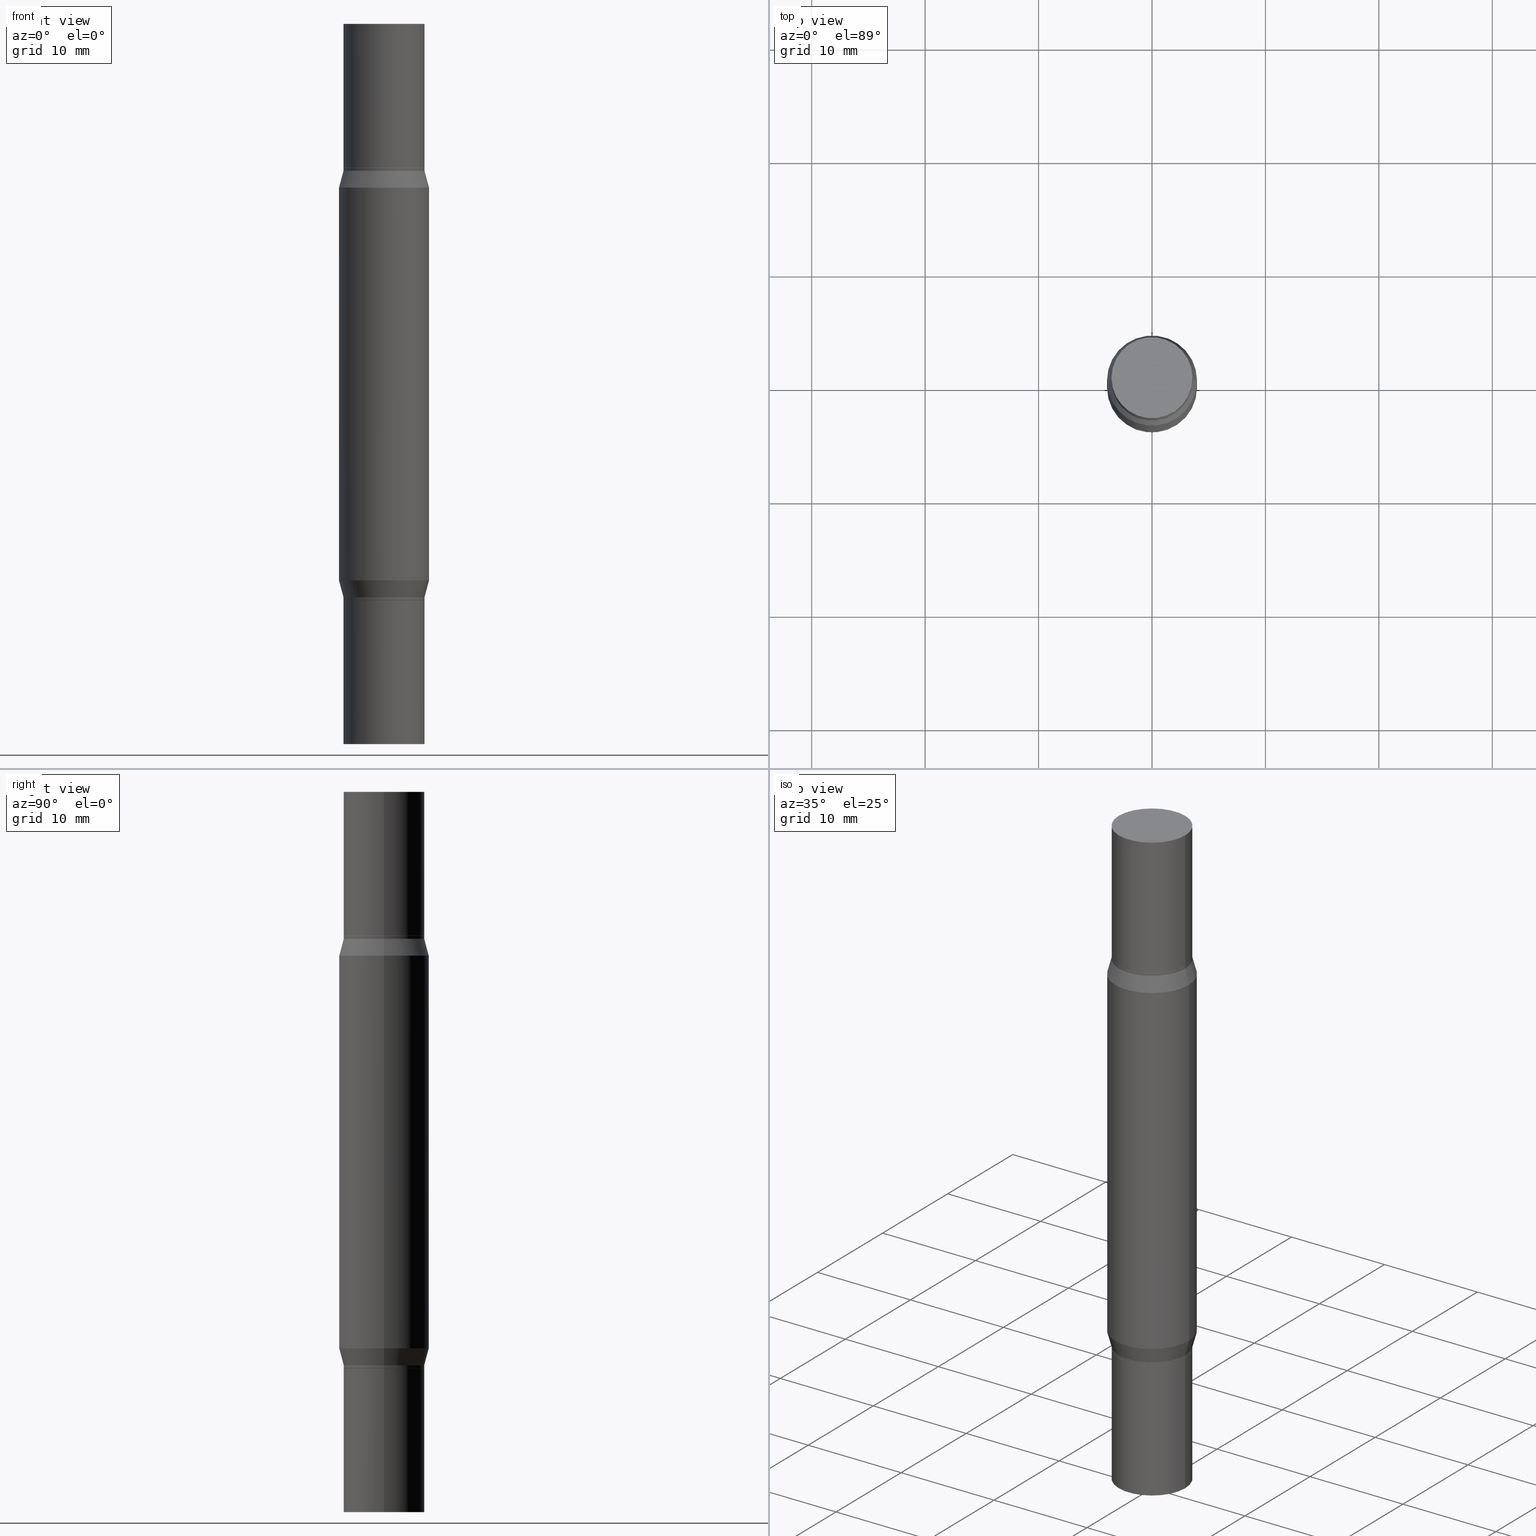
[diagram: canonical four-view strip — front | top / right | iso, engineering-drawing reading convention]
A machine part, canonical four-view strip (front | top / right | iso — engineering-drawing reading convention). The complete STEP part file that produces these views, byte-faithful:
ISO-10303-21;
HEADER;
FILE_DESCRIPTION (( 'STEP AP203' ),
    '1' );
FILE_NAME ('39631.STEP',
    '2024-03-04T16:05:41',
    ( '' ),
    ( '' ),
    'SwSTEP 2.0',
    'SolidWorks 2023',
    '' );
FILE_SCHEMA (( 'CONFIG_CONTROL_DESIGN' ));
ENDSEC;

DATA;
#1 = ADVANCED_FACE ( 'NONE', ( #42 ), #412, .T. ) ;
#2 = PLANE ( 'NONE',  #53 ) ;
#3 = AXIS2_PLACEMENT_3D ( 'NONE', #739, #594, #978 ) ;
#4 = APPROVAL_DATE_TIME ( #87, #448 ) ;
#5 = ORIENTED_EDGE ( 'NONE', *, *, #640, .F. ) ;
#6 = CIRCLE ( 'NONE', #136, 0.1562500000000000000 ) ;
#7 = DIRECTION ( 'NONE',  ( -2.445468806185136597E-29, -3.491805094961124077E-15, -1.000000000000000000 ) ) ;
#8 = PERSON ( 'UNSPECIFIED', 'UNSPECIFIED', 'UNSPECIFIED', ('UNSPECIFIED'), ('UNSPECIFIED'), ('UNSPECIFIED') ) ;
#9 = ADVANCED_FACE ( 'NONE', ( #872 ), #770, .F. ) ;
#10 = COORDINATED_UNIVERSAL_TIME_OFFSET ( 5, 0, .BEHIND. ) ;
#11 = VERTEX_POINT ( 'NONE', #204 ) ;
#12 = DIRECTION ( 'NONE',  ( 1.000000000000000000, -6.982962677686266711E-15, 4.876176775795936353E-29 ) ) ;
#13 = DATE_AND_TIME ( #164, #844 ) ;
#14 = ADVANCED_FACE ( 'NONE', ( #321 ), #200, .T. ) ;
#15 = ORIENTED_EDGE ( 'NONE', *, *, #583, .F. ) ;
#16 = CARTESIAN_POINT ( 'NONE',  ( -0.1406000000000000028, -6.856809925918377173E-15, -2.000000000000000444 ) ) ;
#17 = DIRECTION ( 'NONE',  ( -1.000000000000000000, 6.982962677686265922E-15, -2.260776888683160832E-33 ) ) ;
#18 = AXIS2_PLACEMENT_3D ( 'NONE', #262, #863, #788 ) ;
#19 = DIRECTION ( 'NONE',  ( -0.7071067811865595631, 2.382025595312359119E-15, -0.7071067811865354713 ) ) ;
#20 = AXIS2_PLACEMENT_3D ( 'NONE', #751, #885, #955 ) ;
#21 = LOCAL_TIME ( 11, 5, 41.00000000000000000, #462 ) ;
#22 = APPROVAL ( #392, 'UNSPECIFIED' ) ;
#23 = CARTESIAN_POINT ( 'NONE',  ( 4.866482924308422209E-29, -6.948047864297860305E-15, -1.989999999999999991 ) ) ;
#24 = DIRECTION ( 'NONE',  ( -0.000000000000000000, -3.491643216902134830E-15, -1.000000000000000000 ) ) ;
#25 = ORIENTED_EDGE ( 'NONE', *, *, #330, .F. ) ;
#26 = DIRECTION ( 'NONE',  ( -2.445468806185136597E-29, -3.491805094961124077E-15, -1.000000000000000000 ) ) ;
#27 = EDGE_CURVE ( 'NONE', #359, #539, #429, .T. ) ;
#28 = DIRECTION ( 'NONE',  ( -2.445468806185136877E-29, -3.491805094961123683E-15, -1.000000000000000000 ) ) ;
#29 = ORIENTED_EDGE ( 'NONE', *, *, #704, .T. ) ;
#30 = DIRECTION ( 'NONE',  ( 1.000000000000000000, -6.982962677686266711E-15, 0.000000000000000000 ) ) ;
#31 = ADVANCED_FACE ( 'NONE', ( #639 ), #344, .T. ) ;
#32 = CARTESIAN_POINT ( 'NONE',  ( 4.890937612370273754E-29, -1.745497852333085568E-15, -0.4999999999999993339 ) ) ;
#33 = VECTOR ( 'NONE', #153, 39.37007874015748143 ) ;
#34 = AXIS2_PLACEMENT_3D ( 'NONE', #532, #68, #832 ) ;
#35 = DIRECTION ( 'NONE',  ( -2.445468806185136597E-29, -3.491805094961124077E-15, -1.000000000000000000 ) ) ;
#36 = APPROVAL_PERSON_ORGANIZATION ( #834, #448, #160 ) ;
#37 = DIRECTION ( 'NONE',  ( 2.445468806185136597E-29, 3.491805094961124077E-15, 1.000000000000000000 ) ) ;
#38 = EDGE_CURVE ( 'NONE', #193, #849, #745, .T. ) ;
#39 = CARTESIAN_POINT ( 'NONE',  ( 0.1562500000000000000, -7.835210245695063494E-15, -1.931593404861546848 ) ) ;
#40 = ORIENTED_EDGE ( 'NONE', *, *, #746, .F. ) ;
#41 = CARTESIAN_POINT ( 'NONE',  ( -0.1562500000000000000, -2.102403199508403006E-15, -1.249999999999999778 ) ) ;
#42 = FACE_OUTER_BOUND ( 'NONE', #813, .T. ) ;
#43 = EDGE_CURVE ( 'NONE', #110, #695, #724, .T. ) ;
#44 = CYLINDRICAL_SURFACE ( 'NONE', #857, 0.1405999999999998917 ) ;
#45 = VERTEX_POINT ( 'NONE', #76 ) ;
#46 = DIRECTION ( 'NONE',  ( -2.445468806185136877E-29, -3.491805094961123683E-15, -1.000000000000000000 ) ) ;
#47 = CARTESIAN_POINT ( 'NONE',  ( 0.1405999999999998917, -9.710912594738023419E-15, -2.499999999999999556 ) ) ;
#48 = CARTESIAN_POINT ( 'NONE',  ( 4.866482924308422209E-29, -6.948047864297860305E-15, -1.989999999999999991 ) ) ;
#49 = CARTESIAN_POINT ( 'NONE',  ( -0.1406000000000000028, 9.203943989387182081E-17, 5.463695987328557991E-16 ) ) ;
#50 = ORIENTED_EDGE ( 'NONE', *, *, #209, .F. ) ;
#51 = FACE_OUTER_BOUND ( 'NONE', #703, .T. ) ;
#52 = ADVANCED_FACE ( 'NONE', ( #64 ), #512, .T. ) ;
#53 = AXIS2_PLACEMENT_3D ( 'NONE', #458, #887, #756 ) ;
#54 = CIRCLE ( 'NONE', #496, 0.1401000000000000023 ) ;
#55 = ORIENTED_EDGE ( 'NONE', *, *, #815, .F. ) ;
#56 = AXIS2_PLACEMENT_3D ( 'NONE', #290, #595, #803 ) ;
#57 = FACE_OUTER_BOUND ( 'NONE', #114, .T. ) ;
#58 = ORIENTED_EDGE ( 'NONE', *, *, #934, .T. ) ;
#59 = FACE_OUTER_BOUND ( 'NONE', #256, .T. ) ;
#60 = CARTESIAN_POINT ( 'NONE',  ( 0.1405999999999998917, -9.818045524826883170E-16, 6.855904546769080669E-30 ) ) ;
#61 = DIRECTION ( 'NONE',  ( 1.000000000000000000, -6.982962677686269077E-15, 0.000000000000000000 ) ) ;
#62 = EDGE_LOOP ( 'NONE', ( #758, #15, #719, #342 ) ) ;
#63 = CARTESIAN_POINT ( 'NONE',  ( 0.000000000000000000, -8.729108042255335103E-15, -2.499999999999999556 ) ) ;
#64 = FACE_OUTER_BOUND ( 'NONE', #655, .T. ) ;
#65 = ADVANCED_FACE ( 'NONE', ( #374 ), #208, .F. ) ;
#66 = DIRECTION ( 'NONE',  ( 0.000000000000000000, 1.000000000000000000, -3.496765431890256920E-15 ) ) ;
#67 = ORIENTED_EDGE ( 'NONE', *, *, #411, .F. ) ;
#68 = DIRECTION ( 'NONE',  ( 2.445468806185136597E-29, 3.491805094961124077E-15, 1.000000000000000000 ) ) ;
#69 = DIRECTION ( 'NONE',  ( -2.445468806185136597E-29, -3.491805094961124077E-15, -1.000000000000000000 ) ) ;
#70 = CONICAL_SURFACE ( 'NONE', #620, 0.1401000000000000023, 0.7853981633974653764 ) ;
#71 = AXIS2_PLACEMENT_3D ( 'NONE', #890, #121, #419 ) ;
#72 = PERSON_AND_ORGANIZATION ( #8, #198 ) ;
#73 = EDGE_CURVE ( 'NONE', #485, #175, #697, .T. ) ;
#74 = ORIENTED_EDGE ( 'NONE', *, *, #209, .T. ) ;
#75 = DIRECTION ( 'NONE',  ( -2.445468806185136597E-29, 3.491481338843145583E-15, 1.000000000000000000 ) ) ;
#76 = CARTESIAN_POINT ( 'NONE',  ( -0.1401000000000000023, -7.834999096195914786E-16, -0.4999999999999993339 ) ) ;
#77 = APPROVAL_DATE_TIME ( #13, #341 ) ;
#78 = ORIENTED_EDGE ( 'NONE', *, *, #660, .F. ) ;
#79 = ADVANCED_FACE ( 'NONE', ( #282 ), #446, .T. ) ;
#80 = CARTESIAN_POINT ( 'NONE',  ( 0.1405999999999999195, -2.729048307363254463E-15, -0.5004999999999991678 ) ) ;
#81 = PERSON_AND_ORGANIZATION_ROLE ( 'design_supplier' ) ;
#82 = VERTEX_POINT ( 'NONE', #220 ) ;
#83 = PRODUCT_RELATED_PRODUCT_CATEGORY ( 'detail', '', ( #364 ) ) ;
#84 = DIRECTION ( 'NONE',  ( -2.445468806185136877E-29, 3.491481338843145188E-15, 1.000000000000000000 ) ) ;
#85 = AXIS2_PLACEMENT_3D ( 'NONE', #289, #524, #735 ) ;
#86 = CIRCLE ( 'NONE', #966, 0.1562500000000000000 ) ;
#87 = DATE_AND_TIME ( #467, #635 ) ;
#88 = ORIENTED_EDGE ( 'NONE', *, *, #839, .F. ) ;
#89 = PRODUCT_DEFINITION_FORMATION_WITH_SPECIFIED_SOURCE ( 'ANY', '', #364, .NOT_KNOWN. ) ;
#90 = DIRECTION ( 'NONE',  ( -2.445468806185136597E-29, 3.491481338843145583E-15, 1.000000000000000000 ) ) ;
#91 = EDGE_CURVE ( 'NONE', #653, #102, #729, .T. ) ;
#92 = PERSON_AND_ORGANIZATION ( #8, #198 ) ;
#93 = ORIENTED_EDGE ( 'NONE', *, *, #395, .T. ) ;
#94 = CARTESIAN_POINT ( 'NONE',  ( 4.866482924308422209E-29, -1.780415903282698911E-15, -0.5099999999999994538 ) ) ;
#95 = ORIENTED_EDGE ( 'NONE', *, *, #435, .T. ) ;
#96 = LINE ( 'NONE', #260, #809 ) ;
#97 = FACE_OUTER_BOUND ( 'NONE', #376, .T. ) ;
#98 = AXIS2_PLACEMENT_3D ( 'NONE', #845, #926, #470 ) ;
#99 = EDGE_CURVE ( 'NONE', #211, #240, #572, .T. ) ;
#100 = CARTESIAN_POINT ( 'NONE',  ( 4.890937612370273754E-29, -1.745497852333085568E-15, -0.4999999999999993339 ) ) ;
#101 = VECTOR ( 'NONE', #476, 39.37007874015748143 ) ;
#102 = VERTEX_POINT ( 'NONE', #833 ) ;
#103 = AXIS2_PLACEMENT_3D ( 'NONE', #205, #519, #579 ) ;
#104 = CARTESIAN_POINT ( 'NONE',  ( 0.000000000000000000, 0.000000000000000000, -1.249999999999999778 ) ) ;
#105 = CARTESIAN_POINT ( 'NONE',  ( 3.056836007731420185E-29, -4.364351673553931682E-15, -1.249999999999999778 ) ) ;
#106 = ORIENTED_EDGE ( 'NONE', *, *, #247, .F. ) ;
#107 = ADVANCED_FACE ( 'NONE', ( #147 ), #2, .F. ) ;
#108 = FACE_OUTER_BOUND ( 'NONE', #315, .T. ) ;
#109 = DIRECTION ( 'NONE',  ( -2.445468806185136597E-29, 3.491481338843145583E-15, 1.000000000000000000 ) ) ;
#110 = VERTEX_POINT ( 'NONE', #80 ) ;
#111 = DIRECTION ( 'NONE',  ( 1.000000000000000000, -6.982962677686266711E-15, 4.876176775795935793E-29 ) ) ;
#112 = DIRECTION ( 'NONE',  ( 2.438088387897959208E-29, 3.491805094961123683E-15, 1.000000000000000000 ) ) ;
#113 = LINE ( 'NONE', #408, #684 ) ;
#114 = EDGE_LOOP ( 'NONE', ( #553, #40, #546, #884 ) ) ;
#115 = CIRCLE ( 'NONE', #154, 0.1406000000000000028 ) ;
#116 = AXIS2_PLACEMENT_3D ( 'NONE', #354, #213, #207 ) ;
#117 = CARTESIAN_POINT ( 'NONE',  ( 9.818045524827378180E-16, 0.1405999999999930083, -2.000000000000000444 ) ) ;
#118 = AXIS2_PLACEMENT_3D ( 'NONE', #691, #841, #529 ) ;
#119 = ORIENTED_EDGE ( 'NONE', *, *, #790, .F. ) ;
#120 = ADVANCED_FACE ( 'NONE', ( #744 ), #381, .T. ) ;
#121 = DIRECTION ( 'NONE',  ( -2.445468806185136597E-29, 3.491481338843145583E-15, 1.000000000000000000 ) ) ;
#122 = ORIENTED_EDGE ( 'NONE', *, *, #690, .T. ) ;
#123 = CYLINDRICAL_SURFACE ( 'NONE', #587, 0.1405999999999998917 ) ;
#124 = DIRECTION ( 'NONE',  ( 1.000000000000000000, -6.982962677686266711E-15, 0.000000000000000000 ) ) ;
#125 = FACE_OUTER_BOUND ( 'NONE', #775, .T. ) ;
#126 = ORIENTED_EDGE ( 'NONE', *, *, #930, .T. ) ;
#127 = FACE_OUTER_BOUND ( 'NONE', #936, .T. ) ;
#128 = EDGE_LOOP ( 'NONE', ( #50, #425, #261, #504 ) ) ;
#129 = CARTESIAN_POINT ( 'NONE',  ( 0.000000000000000000, -8.729108042255335103E-15, -2.499999999999999556 ) ) ;
#130 = VERTEX_POINT ( 'NONE', #216 ) ;
#131 = CLOSED_SHELL ( 'NONE', ( #835, #292, #508, #339, #185, #386, #535, #969, #273, #648 ) ) ;
#132 = EDGE_CURVE ( 'NONE', #849, #193, #115, .T. ) ;
#133 = AXIS2_PLACEMENT_3D ( 'NONE', #964, #69, #659 ) ;
#134 = DIRECTION ( 'NONE',  ( -2.445468806185136597E-29, -3.491805094961124077E-15, -1.000000000000000000 ) ) ;
#135 = AXIS2_PLACEMENT_3D ( 'NONE', #23, #847, #461 ) ;
#136 = AXIS2_PLACEMENT_3D ( 'NONE', #365, #517, #377 ) ;
#137 = LINE ( 'NONE', #60, #556 ) ;
#138 = AXIS2_PLACEMENT_3D ( 'NONE', #736, #817, #61 ) ;
#139 = CARTESIAN_POINT ( 'NONE',  ( 4.890937612370273754E-29, -1.745497852333085568E-15, -0.4999999999999993339 ) ) ;
#140 = ORIENTED_EDGE ( 'NONE', *, *, #447, .T. ) ;
#141 = FACE_OUTER_BOUND ( 'NONE', #910, .T. ) ;
#142 = ADVANCED_FACE ( 'NONE', ( #518 ), #666, .T. ) ;
#143 = DIRECTION ( 'NONE',  ( 1.000000000000000000, -6.982962677686269077E-15, 0.000000000000000000 ) ) ;
#144 = DIRECTION ( 'NONE',  ( 2.445468806185136597E-29, 3.491805094961124077E-15, 1.000000000000000000 ) ) ;
#145 = EDGE_LOOP ( 'NONE', ( #55, #590, #623, #846 ) ) ;
#146 = CARTESIAN_POINT ( 'NONE',  ( 4.890937612370273194E-29, -6.982962677686291165E-15, -2.000000000000000000 ) ) ;
#147 = FACE_OUTER_BOUND ( 'NONE', #526, .T. ) ;
#148 = ADVANCED_FACE ( 'NONE', ( #960 ), #683, .T. ) ;
#149 = PERSON_AND_ORGANIZATION_ROLE ( 'creator' ) ;
#150 = ORIENTED_EDGE ( 'NONE', *, *, #156, .T. ) ;
#151 = CARTESIAN_POINT ( 'NONE',  ( 0.000000000000000000, 0.000000000000000000, 0.000000000000000000 ) ) ;
#152 = AXIS2_PLACEMENT_3D ( 'NONE', #582, #378, #511 ) ;
#153 = DIRECTION ( 'NONE',  ( -2.445468806185136877E-29, -3.491805094961123683E-15, -1.000000000000000000 ) ) ;
#154 = AXIS2_PLACEMENT_3D ( 'NONE', #974, #598, #366 ) ;
#155 = VECTOR ( 'NONE', #277, 39.37007874015748143 ) ;
#156 = EDGE_CURVE ( 'NONE', #842, #940, #432, .T. ) ;
#157 = ORIENTED_EDGE ( 'NONE', *, *, #91, .F. ) ;
#158 = FACE_OUTER_BOUND ( 'NONE', #145, .T. ) ;
#159 = DIRECTION ( 'NONE',  ( -2.445468806185136597E-29, -3.491805094961124077E-15, -1.000000000000000000 ) ) ;
#160 = APPROVAL_ROLE ( '' ) ;
#161 = ORIENTED_EDGE ( 'NONE', *, *, #236, .T. ) ;
#162 = CC_DESIGN_PERSON_AND_ORGANIZATION_ASSIGNMENT ( #307, #449, ( #356 ) ) ;
#163 = DIRECTION ( 'NONE',  ( 0.000000000000000000, 3.491643216902134435E-15, 1.000000000000000000 ) ) ;
#164 = CALENDAR_DATE ( 2024, 4, 3 ) ;
#165 = ORIENTED_EDGE ( 'NONE', *, *, #542, .F. ) ;
#166 = CARTESIAN_POINT ( 'NONE',  ( 0.1562500000000000000, -3.075448268154960667E-15, -0.5684065951384525972 ) ) ;
#167 = CONICAL_SURFACE ( 'NONE', #212, 0.1405999999999998917, 0.2617993877991502960 ) ;
#168 = VECTOR ( 'NONE', #434, 39.37007874015748143 ) ;
#169 = PERSON_AND_ORGANIZATION_ROLE ( 'design_owner' ) ;
#170 = ORIENTED_EDGE ( 'NONE', *, *, #870, .F. ) ;
#171 = AXIS2_PLACEMENT_3D ( 'NONE', #811, #652, #275 ) ;
#172 = ADVANCED_FACE ( 'NONE', ( #665 ), #224, .F. ) ;
#173 = DIRECTION ( 'NONE',  ( 1.000000000000000000, -6.982962677686265133E-15, 0.000000000000000000 ) ) ;
#174 = EDGE_CURVE ( 'NONE', #301, #359, #528, .T. ) ;
#175 = VERTEX_POINT ( 'NONE', #752 ) ;
#176 = CARTESIAN_POINT ( 'NONE',  ( 0.1405999999999999195, -2.729048307363254463E-15, -0.5004999999999991678 ) ) ;
#177 = DIRECTION ( 'NONE',  ( -2.445468806185136597E-29, -3.491805094961124077E-15, -1.000000000000000000 ) ) ;
#178 = ORIENTED_EDGE ( 'NONE', *, *, #279, .T. ) ;
#179 = DIRECTION ( 'NONE',  ( 1.000000000000000000, -6.982962677686269077E-15, 0.000000000000000000 ) ) ;
#180 = EDGE_CURVE ( 'NONE', #130, #530, #137, .T. ) ;
#181 = VECTOR ( 'NONE', #246, 39.37007874015748143 ) ;
#182 = DIRECTION ( 'NONE',  ( 0.000000000000000000, 1.000000000000000000, -3.496765431890256920E-15 ) ) ;
#183 = DIRECTION ( 'NONE',  ( -2.445468806185136877E-29, -3.491805094961123683E-15, -1.000000000000000000 ) ) ;
#184 = CARTESIAN_POINT ( 'NONE',  ( 0.1406000000000000028, -9.710912594738023419E-15, -2.499999999999999556 ) ) ;
#185 = ADVANCED_FACE ( 'NONE', ( #391 ), #233, .F. ) ;
#186 = LINE ( 'NONE', #554, #749 ) ;
#187 = SHAPE_DEFINITION_REPRESENTATION ( #907, #379 ) ;
#188 = DIRECTION ( 'NONE',  ( 1.000000000000000000, -6.982962677686265133E-15, 0.000000000000000000 ) ) ;
#189 = DIRECTION ( 'NONE',  ( -0.2588190451025215721, -1.597197180879712551E-15, -0.9659258262890679791 ) ) ;
#190 = ORIENTED_EDGE ( 'NONE', *, *, #325, .T. ) ;
#191 = DIRECTION ( 'NONE',  ( 1.000000000000000000, -6.982962677686265133E-15, 0.000000000000000000 ) ) ;
#192 = ADVANCED_FACE ( 'NONE', ( #326 ), #333, .T. ) ;
#193 = VERTEX_POINT ( 'NONE', #387 ) ;
#194 = FACE_OUTER_BOUND ( 'NONE', #457, .T. ) ;
#195 = AXIS2_PLACEMENT_3D ( 'NONE', #231, #609, #705 ) ;
#196 = CIRCLE ( 'NONE', #453, 0.1562500000000000000 ) ;
#197 = DIRECTION ( 'NONE',  ( 1.000000000000000000, -6.982962677686269077E-15, 0.000000000000000000 ) ) ;
#198 = ORGANIZATION ( 'UNSPECIFIED', 'UNSPECIFIED', '' ) ;
#199 = ADVANCED_FACE ( 'NONE', ( #97 ), #906, .F. ) ;
#200 = CYLINDRICAL_SURFACE ( 'NONE', #318, 0.1406000000000000028 ) ;
#201 = FACE_OUTER_BOUND ( 'NONE', #380, .T. ) ;
#202 = EDGE_LOOP ( 'NONE', ( #409, #493, #804, #515 ) ) ;
#203 = CARTESIAN_POINT ( 'NONE',  ( -0.1405999999999998917, -7.992438105949555922E-16, -0.5099999999999994538 ) ) ;
#204 = CARTESIAN_POINT ( 'NONE',  ( 0.1401000000000000023, -2.723810923476931864E-15, -0.4999999999999993339 ) ) ;
#205 = CARTESIAN_POINT ( 'NONE',  ( 4.866482924308422209E-29, -6.948047864297860305E-15, -1.989999999999999991 ) ) ;
#206 = ORIENTED_EDGE ( 'NONE', *, *, #852, .T. ) ;
#207 = DIRECTION ( 'NONE',  ( 1.000000000000000000, -6.982962677686269077E-15, 0.000000000000000000 ) ) ;
#208 = PLANE ( 'NONE',  #571 ) ;
#209 = EDGE_CURVE ( 'NONE', #742, #301, #808, .T. ) ;
#210 = DIRECTION ( 'NONE',  ( 2.445468806185136597E-29, 3.491805094961124077E-15, 1.000000000000000000 ) ) ;
#211 = VERTEX_POINT ( 'NONE', #166 ) ;
#212 = AXIS2_PLACEMENT_3D ( 'NONE', #94, #394, #694 ) ;
#213 = DIRECTION ( 'NONE',  ( -2.445468806185136597E-29, 3.491481338843145583E-15, 1.000000000000000000 ) ) ;
#214 = VECTOR ( 'NONE', #696, 39.37007874015748143 ) ;
#215 = CIRCLE ( 'NONE', #71, 0.1406000000000000028 ) ;
#216 = CARTESIAN_POINT ( 'NONE',  ( 0.1405999999999999195, -7.963021489499559556E-15, -1.999500000000000277 ) ) ;
#217 = DIRECTION ( 'NONE',  ( 1.000000000000000000, -6.982962677686265133E-15, 0.000000000000000000 ) ) ;
#218 = ORIENTED_EDGE ( 'NONE', *, *, #27, .F. ) ;
#219 = CARTESIAN_POINT ( 'NONE',  ( -0.1405999999999998917, -7.992438105949555922E-16, -0.5099999999999994538 ) ) ;
#220 = CARTESIAN_POINT ( 'NONE',  ( 0.1406000000000000028, -9.710507899590554837E-15, -2.500000000000000000 ) ) ;
#221 = VERTEX_POINT ( 'NONE', #624 ) ;
#222 = FACE_OUTER_BOUND ( 'NONE', #564, .T. ) ;
#223 = EDGE_CURVE ( 'NONE', #82, #422, #766, .T. ) ;
#224 = PLANE ( 'NONE',  #85 ) ;
#225 = ORIENTED_EDGE ( 'NONE', *, *, #91, .T. ) ;
#226 = CARTESIAN_POINT ( 'NONE',  ( 4.890937612370273754E-29, -6.982962677686291954E-15, -2.000000000000000444 ) ) ;
#227 = DIRECTION ( 'NONE',  ( -2.445468806185136597E-29, 3.491481338843145583E-15, 1.000000000000000000 ) ) ;
#228 = APPROVAL_PERSON_ORGANIZATION ( #382, #341, #903 ) ;
#229 = LENGTH_MEASURE_WITH_UNIT ( LENGTH_MEASURE( 0.02539999999999999897 ), #829 );
#230 = ORIENTED_EDGE ( 'NONE', *, *, #355, .F. ) ;
#231 = CARTESIAN_POINT ( 'NONE',  ( 6.155585888104581162E-29, 6.042774635992640075E-17, 5.463695987328526437E-16 ) ) ;
#232 = ORIENTED_EDGE ( 'NONE', *, *, #99, .T. ) ;
#233 = PLANE ( 'NONE',  #698 ) ;
#234 = DATE_AND_TIME ( #761, #21 ) ;
#235 = ORIENTED_EDGE ( 'NONE', *, *, #870, .T. ) ;
#236 = EDGE_CURVE ( 'NONE', #688, #296, #619, .T. ) ;
#237 = ADVANCED_FACE ( 'NONE', ( #921 ), #398, .T. ) ;
#238 = CARTESIAN_POINT ( 'NONE',  ( -0.1406000000000000028, -7.764522023768658166E-15, -2.499999999999999556 ) ) ;
#239 = CIRCLE ( 'NONE', #950, 0.1405999999999999195 ) ;
#240 = VERTEX_POINT ( 'NONE', #309 ) ;
#241 = LOCAL_TIME ( 11, 5, 41.00000000000000000, #898 ) ;
#242 = CARTESIAN_POINT ( 'NONE',  ( 0.000000000000000000, 0.000000000000000000, 0.000000000000000000 ) ) ;
#243 = DIRECTION ( 'NONE',  ( -2.445468806185136597E-29, -3.491805094961124077E-15, -1.000000000000000000 ) ) ;
#244 = LINE ( 'NONE', #323, #353 ) ;
#245 = ORIENTED_EDGE ( 'NONE', *, *, #223, .T. ) ;
#246 = DIRECTION ( 'NONE',  ( -2.445468806185136877E-29, 3.491481338843145188E-15, 1.000000000000000000 ) ) ;
#247 = EDGE_CURVE ( 'NONE', #688, #82, #385, .T. ) ;
#248 = DIRECTION ( 'NONE',  ( -0.7071067811865595631, 2.382025595312359119E-15, -0.7071067811865354713 ) ) ;
#249 = ORIENTED_EDGE ( 'NONE', *, *, #828, .T. ) ;
#250 = PLANE ( 'NONE',  #433 ) ;
#251 = CLOSED_SHELL ( 'NONE', ( #237, #172, #628, #423 ) ) ;
#252 = AXIS2_PLACEMENT_3D ( 'NONE', #680, #882, #454 ) ;
#253 = ADVANCED_FACE ( 'NONE', ( #313 ), #760, .T. ) ;
#254 = AXIS2_PLACEMENT_3D ( 'NONE', #63, #286, #805 ) ;
#255 = DIRECTION ( 'NONE',  ( 1.000000000000000000, -6.982962677686265133E-15, 0.000000000000000000 ) ) ;
#256 = EDGE_LOOP ( 'NONE', ( #140, #509, #67, #78 ) ) ;
#257 =( GEOMETRIC_REPRESENTATION_CONTEXT ( 3 ) GLOBAL_UNCERTAINTY_ASSIGNED_CONTEXT ( ( #469 ) ) GLOBAL_UNIT_ASSIGNED_CONTEXT ( ( #610, #909, #822 ) ) REPRESENTATION_CONTEXT ( 'NONE', 'WORKASPACE' ) );
#258 = CARTESIAN_POINT ( 'NONE',  ( 4.723651417821850369E-29, -1.984360349766479521E-15, -0.5684065951384525972 ) ) ;
#259 = EDGE_CURVE ( 'NONE', #732, #221, #650, .T. ) ;
#260 = CARTESIAN_POINT ( 'NONE',  ( -0.1405999999999998917, -8.158298847960224676E-16, -0.5099999999999994538 ) ) ;
#261 = ORIENTED_EDGE ( 'NONE', *, *, #502, .T. ) ;
#262 = CARTESIAN_POINT ( 'NONE',  ( 4.890937612370273194E-29, -1.745497852333086357E-15, -0.4999999999999996114 ) ) ;
#263 = VERTEX_POINT ( 'NONE', #478 ) ;
#264 = DIRECTION ( 'NONE',  ( 1.000000000000000000, -6.982962677686269077E-15, 0.000000000000000000 ) ) ;
#265 = EDGE_LOOP ( 'NONE', ( #642, #613, #29, #328 ) ) ;
#266 = EDGE_CURVE ( 'NONE', #695, #393, #451, .T. ) ;
#267 = CARTESIAN_POINT ( 'NONE',  ( 0.1405999999999998917, -2.762220455765387228E-15, -0.5099999999999994538 ) ) ;
#268 = DIRECTION ( 'NONE',  ( -2.445468806185136597E-29, -3.491805094961124077E-15, -1.000000000000000000 ) ) ;
#269 = AXIS2_PLACEMENT_3D ( 'NONE', #676, #227, #143 ) ;
#270 = CARTESIAN_POINT ( 'NONE',  ( 4.890937612370273754E-29, -6.982962677686291954E-15, -2.000000000000000444 ) ) ;
#271 = EDGE_LOOP ( 'NONE', ( #230, #218, #406, #232 ) ) ;
#272 = CARTESIAN_POINT ( 'NONE',  ( -0.1562500000000000000, -7.657155230103533296E-15, -2.499999999999999556 ) ) ;
#273 = ADVANCED_FACE ( 'NONE', ( #840 ), #902, .T. ) ;
#274 = ORIENTED_EDGE ( 'NONE', *, *, #73, .F. ) ;
#275 = DIRECTION ( 'NONE',  ( 1.000000000000000000, -6.982962677686269077E-15, 0.000000000000000000 ) ) ;
#276 = ORIENTED_EDGE ( 'NONE', *, *, #708, .T. ) ;
#277 = DIRECTION ( 'NONE',  ( 0.7071067811865595631, -7.406779323393320831E-15, -0.7071067811865354713 ) ) ;
#278 = CARTESIAN_POINT ( 'NONE',  ( 9.818045524827378180E-16, 0.1405999999999982542, -0.5000000000000001110 ) ) ;
#279 = EDGE_CURVE ( 'NONE', #102, #904, #769, .T. ) ;
#280 = ORIENTED_EDGE ( 'NONE', *, *, #862, .F. ) ;
#281 = CARTESIAN_POINT ( 'NONE',  ( 0.000000000000000000, -8.729108042255335103E-15, -2.499999999999999556 ) ) ;
#282 = FACE_OUTER_BOUND ( 'NONE', #864, .T. ) ;
#283 = DIRECTION ( 'NONE',  ( -2.445468806185136597E-29, 3.491481338843145583E-15, 1.000000000000000000 ) ) ;
#284 = VERTEX_POINT ( 'NONE', #615 ) ;
#285 = AXIS2_PLACEMENT_3D ( 'NONE', #781, #562, #197 ) ;
#286 = DIRECTION ( 'NONE',  ( -2.445468806185136597E-29, -3.491805094961124077E-15, -1.000000000000000000 ) ) ;
#287 = CIRCLE ( 'NONE', #544, 0.1406000000000000028 ) ;
#288 = AXIS2_PLACEMENT_3D ( 'NONE', #270, #283, #442 ) ;
#289 = CARTESIAN_POINT ( 'NONE',  ( 6.155585888104581162E-29, -8.668680295895413361E-15, -2.500000000000000000 ) ) ;
#290 = CARTESIAN_POINT ( 'NONE',  ( 6.155585888104581162E-29, 6.042774635992640075E-17, 5.463695987328526437E-16 ) ) ;
#291 = ORIENTED_EDGE ( 'NONE', *, *, #802, .F. ) ;
#292 = ADVANCED_FACE ( 'NONE', ( #772 ), #167, .T. ) ;
#293 = DIRECTION ( 'NONE',  ( 2.445468806185136597E-29, 3.491805094961124077E-15, 1.000000000000000000 ) ) ;
#294 = DIRECTION ( 'NONE',  ( -2.445468806185136597E-29, -3.491805094961124077E-15, -1.000000000000000000 ) ) ;
#295 = CALENDAR_DATE ( 2024, 4, 3 ) ;
#296 = VERTEX_POINT ( 'NONE', #16 ) ;
#297 = DIRECTION ( 'NONE',  ( 2.445468806185136597E-29, 3.491805094961124077E-15, 1.000000000000000000 ) ) ;
#298 = CC_DESIGN_DATE_AND_TIME_ASSIGNMENT ( #754, #975, ( #693 ) ) ;
#299 = DIRECTION ( 'NONE',  ( -2.445468806185136877E-29, -3.491805094961123683E-15, -1.000000000000000000 ) ) ;
#300 = MECHANICAL_CONTEXT ( 'NONE', #941, 'mechanical' ) ;
#301 = VERTEX_POINT ( 'NONE', #176 ) ;
#302 = DIRECTION ( 'NONE',  ( -2.445468806185136597E-29, 3.491481338843145583E-15, 1.000000000000000000 ) ) ;
#303 = AXIS2_PLACEMENT_3D ( 'NONE', #612, #540, #777 ) ;
#304 = ADVANCED_FACE ( 'NONE', ( #317 ), #633, .T. ) ;
#305 = AXIS2_PLACEMENT_3D ( 'NONE', #510, #658, #977 ) ;
#306 = AXIS2_PLACEMENT_3D ( 'NONE', #139, #144, #574 ) ;
#307 = PERSON_AND_ORGANIZATION ( #8, #198 ) ;
#308 = ORIENTED_EDGE ( 'NONE', *, *, #367, .F. ) ;
#309 = CARTESIAN_POINT ( 'NONE',  ( -0.1562500000000000000, -9.124075376146796868E-16, -0.5684065951384525972 ) ) ;
#310 = EDGE_CURVE ( 'NONE', #82, #688, #776, .T. ) ;
#311 = PERSON_AND_ORGANIZATION ( #8, #198 ) ;
#312 = ORIENTED_EDGE ( 'NONE', *, *, #43, .F. ) ;
#313 = FACE_OUTER_BOUND ( 'NONE', #128, .T. ) ;
#314 = COORDINATED_UNIVERSAL_TIME_OFFSET ( 5, 0, .BEHIND. ) ;
#315 = EDGE_LOOP ( 'NONE', ( #126, #520 ) ) ;
#316 = ADVANCED_FACE ( 'NONE', ( #643 ), #123, .T. ) ;
#317 = FACE_OUTER_BOUND ( 'NONE', #431, .T. ) ;
#318 = AXIS2_PLACEMENT_3D ( 'NONE', #785, #243, #188 ) ;
#319 = VECTOR ( 'NONE', #914, 39.37007874015748143 ) ;
#320 = MANIFOLD_SOLID_BREP ( 'Mirror1[4]', #827 ) ;
#321 = FACE_OUTER_BOUND ( 'NONE', #265, .T. ) ;
#322 = CC_DESIGN_SECURITY_CLASSIFICATION ( #356, ( #89 ) ) ;
#323 = CARTESIAN_POINT ( 'NONE',  ( -0.1405999999999998917, -5.949024777819160607E-15, -1.989999999999999991 ) ) ;
#324 = EDGE_LOOP ( 'NONE', ( #682, #383, #190, #346 ) ) ;
#325 = EDGE_CURVE ( 'NONE', #211, #732, #410, .T. ) ;
#326 = FACE_OUTER_BOUND ( 'NONE', #463, .T. ) ;
#327 = DIRECTION ( 'NONE',  ( 1.000000000000000000, -6.982962677686262766E-15, 0.000000000000000000 ) ) ;
#328 = ORIENTED_EDGE ( 'NONE', *, *, #773, .F. ) ;
#329 = DIRECTION ( 'NONE',  ( 1.000000000000000000, -6.982962677686269077E-15, 0.000000000000000000 ) ) ;
#330 = EDGE_CURVE ( 'NONE', #550, #818, #480, .T. ) ;
#331 = LINE ( 'NONE', #935, #101 ) ;
#332 = CARTESIAN_POINT ( 'NONE',  ( 0.1406000000000000028, -7.964767230168980271E-15, -2.000000000000000444 ) ) ;
#333 = CONICAL_SURFACE ( 'NONE', #135, 0.1405999999999998917, 0.2617993877991502960 ) ;
#334 = VECTOR ( 'NONE', #959, 39.37007874015748143 ) ;
#335 = DIRECTION ( 'NONE',  ( -2.445468806185136877E-29, -3.491805094961123683E-15, -1.000000000000000000 ) ) ;
#336 = CC_DESIGN_APPROVAL ( #341, ( #693 ) ) ;
#337 = DIRECTION ( 'NONE',  ( 2.445468806185136597E-29, 3.491805094961124077E-15, 1.000000000000000000 ) ) ;
#338 = DIRECTION ( 'NONE',  ( 1.000000000000000000, -6.982962677686266711E-15, 0.000000000000000000 ) ) ;
#339 = ADVANCED_FACE ( 'NONE', ( #942 ), #843, .T. ) ;
#340 = DIRECTION ( 'NONE',  ( 1.000000000000000000, -6.982962677686265133E-15, 0.000000000000000000 ) ) ;
#341 = APPROVAL ( #536, 'UNSPECIFIED' ) ;
#342 = ORIENTED_EDGE ( 'NONE', *, *, #708, .F. ) ;
#343 = CARTESIAN_POINT ( 'NONE',  ( 0.000000000000000000, 0.000000000000000000, 0.000000000000000000 ) ) ;
#344 = CYLINDRICAL_SURFACE ( 'NONE', #384, 0.1406000000000000028 ) ;
#345 = CARTESIAN_POINT ( 'NONE',  ( 0.000000000000000000, -8.729108042255335103E-15, -2.499999999999999556 ) ) ;
#346 = ORIENTED_EDGE ( 'NONE', *, *, #259, .T. ) ;
#347 = LINE ( 'NONE', #568, #481 ) ;
#348 = ORIENTED_EDGE ( 'NONE', *, *, #828, .F. ) ;
#349 = CLOSED_SHELL ( 'NONE', ( #908, #1, #475, #120, #304, #253, #460, #107, #148, #972, #142, #558, #192, #316, #52, #602 ) ) ;
#350 = DIRECTION ( 'NONE',  ( 1.000000000000000000, -6.982962677686269077E-15, 0.000000000000000000 ) ) ;
#351 = EDGE_LOOP ( 'NONE', ( #165, #838, #895, #170 ) ) ;
#352 = AXIS2_PLACEMENT_3D ( 'NONE', #897, #807, #441 ) ;
#353 = VECTOR ( 'NONE', #716, 39.37007874015748143 ) ;
#354 = CARTESIAN_POINT ( 'NONE',  ( 4.723651417821850369E-29, -6.744122327306583531E-15, -1.931593404861546848 ) ) ;
#355 = EDGE_CURVE ( 'NONE', #539, #240, #948, .T. ) ;
#356 = SECURITY_CLASSIFICATION ( '', '', #525 ) ;
#357 = ORIENTED_EDGE ( 'NONE', *, *, #618, .T. ) ;
#358 = DIRECTION ( 'NONE',  ( 1.000000000000000000, -6.982962677686270655E-15, 0.000000000000000000 ) ) ;
#359 = VERTEX_POINT ( 'NONE', #710 ) ;
#360 = LINE ( 'NONE', #601, #168 ) ;
#361 = CARTESIAN_POINT ( 'NONE',  ( 9.818045524827378180E-16, 0.1405999999999982542, -0.5000000000000001110 ) ) ;
#362 = CARTESIAN_POINT ( 'NONE',  ( -0.1405999999999999195, -7.826577363938889141E-16, -0.5004999999999991678 ) ) ;
#363 = ORIENTED_EDGE ( 'NONE', *, *, #247, .T. ) ;
#364 = PRODUCT ( '39631', '39631', '', ( #300 ) ) ;
#365 = CARTESIAN_POINT ( 'NONE',  ( 4.723651417821850369E-29, -1.984360349766479521E-15, -0.5684065951384525972 ) ) ;
#366 = DIRECTION ( 'NONE',  ( 1.000000000000000000, -6.982962677686266711E-15, 0.000000000000000000 ) ) ;
#367 = EDGE_CURVE ( 'NONE', #102, #653, #606, .T. ) ;
#368 = CARTESIAN_POINT ( 'NONE',  ( -0.1406000000000000028, 9.203943989387194407E-17, -0.4999999999999993339 ) ) ;
#369 = ORIENTED_EDGE ( 'NONE', *, *, #483, .F. ) ;
#370 = AXIS2_PLACEMENT_3D ( 'NONE', #543, #699, #465 ) ;
#371 = LINE ( 'NONE', #521, #700 ) ;
#372 = AXIS2_PLACEMENT_3D ( 'NONE', #226, #75, #593 ) ;
#373 = CIRCLE ( 'NONE', #401, 0.1401000000000000023 ) ;
#374 = FACE_OUTER_BOUND ( 'NONE', #924, .T. ) ;
#375 = APPROVAL_ROLE ( '' ) ;
#376 = EDGE_LOOP ( 'NONE', ( #946, #576 ) ) ;
#377 = DIRECTION ( 'NONE',  ( 1.000000000000000000, -6.982962677686265133E-15, 0.000000000000000000 ) ) ;
#378 = DIRECTION ( 'NONE',  ( -2.445468806185136597E-29, 3.491481338843145583E-15, 1.000000000000000000 ) ) ;
#379 = ADVANCED_BREP_SHAPE_REPRESENTATION ( '39631', ( #614, #630, #947, #320, #968, #118 ), #257 ) ;
#380 = EDGE_LOOP ( 'NONE', ( #580, #122, #499, #491 ) ) ;
#381 = CYLINDRICAL_SURFACE ( 'NONE', #133, 0.1562500000000000000 ) ;
#382 = PERSON_AND_ORGANIZATION ( #8, #198 ) ;
#383 = ORIENTED_EDGE ( 'NONE', *, *, #99, .F. ) ;
#384 = AXIS2_PLACEMENT_3D ( 'NONE', #944, #268, #570 ) ;
#385 = CIRCLE ( 'NONE', #98, 0.1406000000000000028 ) ;
#386 = ADVANCED_FACE ( 'NONE', ( #486 ), #937, .F. ) ;
#387 = CARTESIAN_POINT ( 'NONE',  ( 0.1406000000000000028, -9.813998573352146072E-16, 5.463695987328526437E-16 ) ) ;
#388 = AXIS2_PLACEMENT_3D ( 'NONE', #48, #109, #484 ) ;
#389 = AXIS2_PLACEMENT_3D ( 'NONE', #32, #782, #636 ) ;
#390 = ORIENTED_EDGE ( 'NONE', *, *, #839, .T. ) ;
#391 = FACE_OUTER_BOUND ( 'NONE', #726, .T. ) ;
#392 = APPROVAL_STATUS ( 'not_yet_approved' ) ;
#393 = VERTEX_POINT ( 'NONE', #203 ) ;
#394 = DIRECTION ( 'NONE',  ( -2.445468806185136597E-29, -3.491805094961124077E-15, -1.000000000000000000 ) ) ;
#395 = EDGE_CURVE ( 'NONE', #678, #263, #196, .T. ) ;
#396 = ORIENTED_EDGE ( 'NONE', *, *, #236, .F. ) ;
#397 = CARTESIAN_POINT ( 'NONE',  ( -0.1406000000000000028, -6.856809925918377173E-15, -2.500000000000000000 ) ) ;
#398 = CYLINDRICAL_SURFACE ( 'NONE', #888, 0.1406000000000000028 ) ;
#399 = AXIS2_PLACEMENT_3D ( 'NONE', #901, #159, #534 ) ;
#400 = AXIS2_PLACEMENT_3D ( 'NONE', #629, #563, #264 ) ;
#401 = AXIS2_PLACEMENT_3D ( 'NONE', #957, #210, #350 ) ;
#402 = DIRECTION ( 'NONE',  ( -2.445468806185136877E-29, -3.491805094961123683E-15, -1.000000000000000000 ) ) ;
#403 = CARTESIAN_POINT ( 'NONE',  ( -0.1406000000000000028, 9.990230864787008809E-16, -6.916022736898397739E-30 ) ) ;
#404 = DIRECTION ( 'NONE',  ( 1.000000000000000000, -6.982962677686266711E-15, 4.876176775795936353E-29 ) ) ;
#405 = CARTESIAN_POINT ( 'NONE',  ( -0.1405999999999999195, -7.826577363938889141E-16, -0.5004999999999991678 ) ) ;
#406 = ORIENTED_EDGE ( 'NONE', *, *, #522, .T. ) ;
#407 = LINE ( 'NONE', #267, #918 ) ;
#408 = CARTESIAN_POINT ( 'NONE',  ( -0.1562500000000000000, -7.657155230103533296E-15, -2.499999999999999556 ) ) ;
#409 = ORIENTED_EDGE ( 'NONE', *, *, #674, .F. ) ;
#410 = LINE ( 'NONE', #855, #711 ) ;
#411 = EDGE_CURVE ( 'NONE', #130, #284, #871, .T. ) ;
#412 = CYLINDRICAL_SURFACE ( 'NONE', #631, 0.1405999999999998917 ) ;
#413 = VECTOR ( 'NONE', #565, 39.37007874015748143 ) ;
#414 = AXIS2_PLACEMENT_3D ( 'NONE', #706, #177, #327 ) ;
#415 = CARTESIAN_POINT ( 'NONE',  ( -0.1405999999999998917, -5.965609314178665286E-15, -1.989999999999999991 ) ) ;
#416 = AXIS2_PLACEMENT_3D ( 'NONE', #656, #430, #795 ) ;
#417 = DIRECTION ( 'NONE',  ( 2.438088387897960049E-29, -3.491481338843145188E-15, -1.000000000000000000 ) ) ;
#418 = ORIENTED_EDGE ( 'NONE', *, *, #279, .F. ) ;
#419 = DIRECTION ( 'NONE',  ( 1.000000000000000000, -6.982962677686265133E-15, 0.000000000000000000 ) ) ;
#420 = ORIENTED_EDGE ( 'NONE', *, *, #820, .F. ) ;
#421 = DIRECTION ( 'NONE',  ( 1.000000000000000000, -6.982962677686266711E-15, 0.000000000000000000 ) ) ;
#422 = VERTEX_POINT ( 'NONE', #332 ) ;
#423 = ADVANCED_FACE ( 'NONE', ( #108 ), #250, .F. ) ;
#424 = CARTESIAN_POINT ( 'NONE',  ( 3.056836007731420185E-29, -4.364351673553931682E-15, -1.249999999999999778 ) ) ;
#425 = ORIENTED_EDGE ( 'NONE', *, *, #674, .T. ) ;
#426 = CARTESIAN_POINT ( 'NONE',  ( 4.890937612370273754E-29, -1.745497852333085568E-15, -0.4999999999999993339 ) ) ;
#427 = APPROVAL_DATE_TIME ( #943, #22 ) ;
#428 = VERTEX_POINT ( 'NONE', #41 ) ;
#429 = CIRCLE ( 'NONE', #806, 0.1405999999999998917 ) ;
#430 = DIRECTION ( 'NONE',  ( 2.445468806185136597E-29, 3.491805094961124077E-15, 1.000000000000000000 ) ) ;
#431 = EDGE_LOOP ( 'NONE', ( #922, #875, #438, #596 ) ) ;
#432 = CIRCLE ( 'NONE', #352, 0.1406000000000000028 ) ;
#433 = AXIS2_PLACEMENT_3D ( 'NONE', #117, #417, #933 ) ;
#434 = DIRECTION ( 'NONE',  ( 0.2588190451025215721, -5.180148453816008779E-15, -0.9659258262890679791 ) ) ;
#435 = EDGE_CURVE ( 'NONE', #695, #263, #407, .T. ) ;
#436 = DIRECTION ( 'NONE',  ( 2.438088387897959208E-29, 3.491805094961123683E-15, 1.000000000000000000 ) ) ;
#437 = CARTESIAN_POINT ( 'NONE',  ( 4.723651417821850369E-29, -1.984360349766479521E-15, -0.5684065951384525972 ) ) ;
#438 = ORIENTED_EDGE ( 'NONE', *, *, #862, .T. ) ;
#439 = CARTESIAN_POINT ( 'NONE',  ( -0.1401000000000000023, -5.987492304886391577E-15, -2.000000000000000444 ) ) ;
#440 = EDGE_CURVE ( 'NONE', #263, #611, #347, .T. ) ;
#441 = DIRECTION ( 'NONE',  ( 1.000000000000000000, -6.982962677686265133E-15, 0.000000000000000000 ) ) ;
#442 = DIRECTION ( 'NONE',  ( 1.000000000000000000, -6.982962677686265133E-15, 0.000000000000000000 ) ) ;
#443 = ORIENTED_EDGE ( 'NONE', *, *, #471, .T. ) ;
#444 = APPLICATION_CONTEXT ( 'configuration controlled 3d designs of mechanical parts and assemblies' ) ;
#445 = DIRECTION ( 'NONE',  ( -2.438088387897960049E-29, 3.491481338843145188E-15, 1.000000000000000000 ) ) ;
#446 = CYLINDRICAL_SURFACE ( 'NONE', #399, 0.1406000000000000028 ) ;
#447 = EDGE_CURVE ( 'NONE', #175, #485, #54, .T. ) ;
#448 = APPROVAL ( #912, 'UNSPECIFIED' ) ;
#449 = PERSON_AND_ORGANIZATION_ROLE ( 'classification_officer' ) ;
#450 = ORIENTED_EDGE ( 'NONE', *, *, #310, .F. ) ;
#451 = CIRCLE ( 'NONE', #303, 0.1405999999999998917 ) ;
#452 = CARTESIAN_POINT ( 'NONE',  ( 4.866482924308422209E-29, -1.780415903282698911E-15, -0.5099999999999994538 ) ) ;
#453 = AXIS2_PLACEMENT_3D ( 'NONE', #258, #718, #191 ) ;
#454 = DIRECTION ( 'NONE',  ( 1.000000000000000000, -6.982962677686266711E-15, 0.000000000000000000 ) ) ;
#455 = PERSON_AND_ORGANIZATION ( #8, #198 ) ;
#456 = EDGE_CURVE ( 'NONE', #240, #221, #500, .T. ) ;
#457 = EDGE_LOOP ( 'NONE', ( #662, #980, #692, #768 ) ) ;
#458 = CARTESIAN_POINT ( 'NONE',  ( 4.890937612370273194E-29, -1.745497852333086357E-15, -0.4999999999999996114 ) ) ;
#459 = ORIENTED_EDGE ( 'NONE', *, *, #73, .T. ) ;
#460 = ADVANCED_FACE ( 'NONE', ( #127 ), #70, .T. ) ;
#461 = DIRECTION ( 'NONE',  ( 1.000000000000000000, -6.982962677686263555E-15, 0.000000000000000000 ) ) ;
#462 = COORDINATED_UNIVERSAL_TIME_OFFSET ( 5, 0, .BEHIND. ) ;
#463 = EDGE_LOOP ( 'NONE', ( #495, #235, #787, #717 ) ) ;
#464 = AXIS2_PLACEMENT_3D ( 'NONE', #851, #302, #179 ) ;
#465 = DIRECTION ( 'NONE',  ( 1.000000000000000000, -6.982962677686266711E-15, 0.000000000000000000 ) ) ;
#466 = CIRCLE ( 'NONE', #557, 0.1405999999999998917 ) ;
#467 = CALENDAR_DATE ( 2024, 4, 3 ) ;
#468 = ORIENTED_EDGE ( 'NONE', *, *, #435, .F. ) ;
#469 = UNCERTAINTY_MEASURE_WITH_UNIT (LENGTH_MEASURE( 1.000000000000000082E-05 ), #610, 'distance_accuracy_value', 'NONE');
#470 = DIRECTION ( 'NONE',  ( 1.000000000000000000, -6.982962677686272233E-15, 0.000000000000000000 ) ) ;
#471 = EDGE_CURVE ( 'NONE', #861, #393, #186, .T. ) ;
#472 = ORIENTED_EDGE ( 'NONE', *, *, #367, .T. ) ;
#473 = CARTESIAN_POINT ( 'NONE',  ( -0.1405999999999998917, -7.764522023768658166E-15, -2.499999999999999556 ) ) ;
#474 = CARTESIAN_POINT ( 'NONE',  ( 4.866482924308422209E-29, -1.780415903282698911E-15, -0.5099999999999994538 ) ) ;
#475 = ADVANCED_FACE ( 'NONE', ( #59 ), #669, .T. ) ;
#476 = DIRECTION ( 'NONE',  ( 0.7071067811865595631, -2.468850131082382884E-15, 0.7071067811865354713 ) ) ;
#477 = EDGE_LOOP ( 'NONE', ( #541, #348, #357, #737 ) ) ;
#478 = CARTESIAN_POINT ( 'NONE',  ( 0.1562500000000000000, -3.075448268154960667E-15, -0.5684065951384525972 ) ) ;
#479 = CLOSED_SHELL ( 'NONE', ( #14, #199, #489, #9 ) ) ;
#480 = CIRCLE ( 'NONE', #285, 0.1401000000000000023 ) ;
#481 = VECTOR ( 'NONE', #46, 39.37007874015748143 ) ;
#482 = CIRCLE ( 'NONE', #171, 0.1401000000000000023 ) ;
#483 = EDGE_CURVE ( 'NONE', #485, #284, #654, .T. ) ;
#484 = DIRECTION ( 'NONE',  ( 1.000000000000000000, -6.982962677686263555E-15, 0.000000000000000000 ) ) ;
#485 = VERTEX_POINT ( 'NONE', #581 ) ;
#486 = FACE_OUTER_BOUND ( 'NONE', #600, .T. ) ;
#487 = CARTESIAN_POINT ( 'NONE',  ( 0.1401000000000000023, -2.723810923476931864E-15, -0.4999999999999993339 ) ) ;
#488 = ORIENTED_EDGE ( 'NONE', *, *, #704, .F. ) ;
#489 = ADVANCED_FACE ( 'NONE', ( #141 ), #738, .T. ) ;
#490 = DIRECTION ( 'NONE',  ( -2.445468806185136597E-29, 3.491481338843145583E-15, 1.000000000000000000 ) ) ;
#491 = ORIENTED_EDGE ( 'NONE', *, *, #919, .F. ) ;
#492 = DIRECTION ( 'NONE',  ( 2.445468806185136597E-29, 3.491805094961124077E-15, 1.000000000000000000 ) ) ;
#493 = ORIENTED_EDGE ( 'NONE', *, *, #523, .F. ) ;
#494 = DIRECTION ( 'NONE',  ( -2.445468806185136597E-29, 3.491481338843145583E-15, 1.000000000000000000 ) ) ;
#495 = ORIENTED_EDGE ( 'NONE', *, *, #690, .F. ) ;
#496 = AXIS2_PLACEMENT_3D ( 'NONE', #868, #796, #505 ) ;
#497 = DIRECTION ( 'NONE',  ( -2.445468806185136597E-29, -3.491805094961124077E-15, -1.000000000000000000 ) ) ;
#498 = CIRCLE ( 'NONE', #750, 0.1562500000000000000 ) ;
#499 = ORIENTED_EDGE ( 'NONE', *, *, #259, .F. ) ;
#500 = LINE ( 'NONE', #272, #607 ) ;
#501 = CARTESIAN_POINT ( 'NONE',  ( 6.113672015462842613E-29, 4.046951474745467748E-19, 5.463695987328526437E-16 ) ) ;
#502 = EDGE_CURVE ( 'NONE', #539, #359, #466, .T. ) ;
#503 = FACE_OUTER_BOUND ( 'NONE', #202, .T. ) ;
#504 = ORIENTED_EDGE ( 'NONE', *, *, #174, .F. ) ;
#505 = DIRECTION ( 'NONE',  ( 1.000000000000000000, -6.982962677686269077E-15, 0.000000000000000000 ) ) ;
#506 = ORIENTED_EDGE ( 'NONE', *, *, #892, .F. ) ;
#507 = DIRECTION ( 'NONE',  ( 1.000000000000000000, -6.982962677686262766E-15, 0.000000000000000000 ) ) ;
#508 = ADVANCED_FACE ( 'NONE', ( #893 ), #675, .T. ) ;
#509 = ORIENTED_EDGE ( 'NONE', *, *, #483, .T. ) ;
#510 = CARTESIAN_POINT ( 'NONE',  ( 4.890937612370273754E-29, -1.745497852333085568E-15, -0.4999999999999993339 ) ) ;
#511 = DIRECTION ( 'NONE',  ( 1.000000000000000000, -6.982962677686269077E-15, 0.000000000000000000 ) ) ;
#512 = CONICAL_SURFACE ( 'NONE', #152, 0.1401000000000000023, 0.7853981633974653764 ) ;
#513 = AXIS2_PLACEMENT_3D ( 'NONE', #627, #35, #329 ) ;
#514 = CARTESIAN_POINT ( 'NONE',  ( 0.1406000000000000028, -2.727302404815774476E-15, -0.4999999999999993339 ) ) ;
#515 = ORIENTED_EDGE ( 'NONE', *, *, #27, .T. ) ;
#516 = CIRCLE ( 'NONE', #651, 0.1405999999999999195 ) ;
#517 = DIRECTION ( 'NONE',  ( 2.445468806185136597E-29, 3.491805094961124077E-15, 1.000000000000000000 ) ) ;
#518 = FACE_OUTER_BOUND ( 'NONE', #271, .T. ) ;
#519 = DIRECTION ( 'NONE',  ( -2.445468806185136597E-29, 3.491481338843145583E-15, 1.000000000000000000 ) ) ;
#520 = ORIENTED_EDGE ( 'NONE', *, *, #892, .T. ) ;
#521 = CARTESIAN_POINT ( 'NONE',  ( -0.1405999999999998917, 9.990230864787000920E-16, -6.916022736898392134E-30 ) ) ;
#522 = EDGE_CURVE ( 'NONE', #359, #211, #360, .T. ) ;
#523 = EDGE_CURVE ( 'NONE', #301, #742, #905, .T. ) ;
#524 = DIRECTION ( 'NONE',  ( -2.438088387897960049E-29, 3.491481338843145188E-15, 1.000000000000000000 ) ) ;
#525 = SECURITY_CLASSIFICATION_LEVEL ( 'unclassified' ) ;
#526 = EDGE_LOOP ( 'NONE', ( #249, #854 ) ) ;
#527 = CYLINDRICAL_SURFACE ( 'NONE', #591, 0.1406000000000000028 ) ;
#528 = LINE ( 'NONE', #825, #33 ) ;
#529 = DIRECTION ( 'NONE',  ( 1.000000000000000000, 0.000000000000000000, 0.000000000000000000 ) ) ;
#530 = VERTEX_POINT ( 'NONE', #824 ) ;
#531 = AXIS2_PLACEMENT_3D ( 'NONE', #672, #821, #586 ) ;
#532 = CARTESIAN_POINT ( 'NONE',  ( 4.889714877967180953E-29, -1.747243754880567132E-15, -0.5004999999999991678 ) ) ;
#533 = VECTOR ( 'NONE', #19, 39.37007874015748143 ) ;
#534 = DIRECTION ( 'NONE',  ( 1.000000000000000000, -6.982962677686265133E-15, 0.000000000000000000 ) ) ;
#535 = ADVANCED_FACE ( 'NONE', ( #158 ), #573, .T. ) ;
#536 = APPROVAL_STATUS ( 'not_yet_approved' ) ;
#537 = ORIENTED_EDGE ( 'NONE', *, *, #765, .F. ) ;
#538 = CARTESIAN_POINT ( 'NONE',  ( 4.889714877967180953E-29, -1.747243754880567132E-15, -0.5004999999999991678 ) ) ;
#539 = VERTEX_POINT ( 'NONE', #219 ) ;
#540 = DIRECTION ( 'NONE',  ( 2.445468806185136597E-29, 3.491805094961124077E-15, 1.000000000000000000 ) ) ;
#541 = ORIENTED_EDGE ( 'NONE', *, *, #734, .F. ) ;
#542 = EDGE_CURVE ( 'NONE', #284, #644, #371, .T. ) ;
#543 = CARTESIAN_POINT ( 'NONE',  ( 4.866482924308422209E-29, -1.780415903282698911E-15, -0.5099999999999994538 ) ) ;
#544 = AXIS2_PLACEMENT_3D ( 'NONE', #100, #549, #340 ) ;
#545 = CC_DESIGN_APPROVAL ( #448, ( #89 ) ) ;
#546 = ORIENTED_EDGE ( 'NONE', *, *, #43, .T. ) ;
#547 = DIRECTION ( 'NONE',  ( -2.445468806185136877E-29, -3.491805094961123683E-15, -1.000000000000000000 ) ) ;
#548 = ORIENTED_EDGE ( 'NONE', *, *, #660, .T. ) ;
#549 = DIRECTION ( 'NONE',  ( 2.445468806185136597E-29, 3.491805094961124077E-15, 1.000000000000000000 ) ) ;
#550 = VERTEX_POINT ( 'NONE', #585 ) ;
#551 = DIRECTION ( 'NONE',  ( 1.000000000000000000, -6.982962677686270655E-15, 0.000000000000000000 ) ) ;
#552 = CARTESIAN_POINT ( 'NONE',  ( 0.1401000000000000023, -2.723810923476931864E-15, -0.4999999999999993339 ) ) ;
#553 = ORIENTED_EDGE ( 'NONE', *, *, #471, .F. ) ;
#554 = CARTESIAN_POINT ( 'NONE',  ( -0.1405999999999998917, -7.764522023768658166E-15, -2.499999999999999556 ) ) ;
#555 = AXIS2_PLACEMENT_3D ( 'NONE', #894, #294, #816 ) ;
#556 = VECTOR ( 'NONE', #84, 39.37007874015748143 ) ;
#557 = AXIS2_PLACEMENT_3D ( 'NONE', #452, #293, #881 ) ;
#558 = ADVANCED_FACE ( 'NONE', ( #896 ), #733, .T. ) ;
#559 = CONICAL_SURFACE ( 'NONE', #952, 0.1405999999999998917, 0.2617993877991502960 ) ;
#560 = CYLINDRICAL_SURFACE ( 'NONE', #414, 0.1562500000000000000 ) ;
#561 = ORIENTED_EDGE ( 'NONE', *, *, #848, .T. ) ;
#562 = DIRECTION ( 'NONE',  ( 2.445468806185136597E-29, 3.491805094961124077E-15, 1.000000000000000000 ) ) ;
#563 = DIRECTION ( 'NONE',  ( -2.445468806185136597E-29, 3.491481338843145583E-15, 1.000000000000000000 ) ) ;
#564 = EDGE_LOOP ( 'NONE', ( #396, #363, #245, #506 ) ) ;
#565 = DIRECTION ( 'NONE',  ( -0.2588190451025215721, -1.597197180879712551E-15, -0.9659258262890679791 ) ) ;
#566 = EDGE_LOOP ( 'NONE', ( #646, #488 ) ) ;
#567 = CARTESIAN_POINT ( 'NONE',  ( -0.1406000000000000028, -7.764522023768658166E-15, -2.499999999999999556 ) ) ;
#568 = CARTESIAN_POINT ( 'NONE',  ( 0.1562500000000000000, -9.820195960643813487E-15, -2.499999999999999556 ) ) ;
#569 = EDGE_CURVE ( 'NONE', #221, #732, #856, .T. ) ;
#570 = DIRECTION ( 'NONE',  ( 1.000000000000000000, -6.982962677686265133E-15, 0.000000000000000000 ) ) ;
#571 = AXIS2_PLACEMENT_3D ( 'NONE', #361, #436, #603 ) ;
#572 = CIRCLE ( 'NONE', #3, 0.1562500000000000000 ) ;
#573 = CONICAL_SURFACE ( 'NONE', #305, 0.1401000000000000023, 0.7853981633974653764 ) ;
#574 = DIRECTION ( 'NONE',  ( 1.000000000000000000, -6.982962677686265133E-15, 0.000000000000000000 ) ) ;
#575 = CIRCLE ( 'NONE', #416, 0.1405999999999998917 ) ;
#576 = ORIENTED_EDGE ( 'NONE', *, *, #132, .T. ) ;
#577 = DIRECTION ( 'NONE',  ( 1.000000000000000000, -6.982962677686272233E-15, 0.000000000000000000 ) ) ;
#578 = EDGE_LOOP ( 'NONE', ( #891, #161, #783, #584 ) ) ;
#579 = DIRECTION ( 'NONE',  ( 1.000000000000000000, -6.982962677686263555E-15, 0.000000000000000000 ) ) ;
#580 = ORIENTED_EDGE ( 'NONE', *, *, #640, .T. ) ;
#581 = CARTESIAN_POINT ( 'NONE',  ( -0.1401000000000000023, -5.984843077712281954E-15, -2.000000000000000444 ) ) ;
#582 = CARTESIAN_POINT ( 'NONE',  ( 4.890937612370273754E-29, -6.982962677686291954E-15, -2.000000000000000444 ) ) ;
#583 = EDGE_CURVE ( 'NONE', #263, #678, #6, .T. ) ;
#584 = ORIENTED_EDGE ( 'NONE', *, *, #223, .F. ) ;
#585 = CARTESIAN_POINT ( 'NONE',  ( -0.1401000000000000023, -7.834999096195914786E-16, -0.4999999999999993339 ) ) ;
#586 = DIRECTION ( 'NONE',  ( 1.000000000000000000, -6.982962677686266711E-15, 0.000000000000000000 ) ) ;
#587 = AXIS2_PLACEMENT_3D ( 'NONE', #343, #490, #111 ) ;
#588 = EDGE_CURVE ( 'NONE', #861, #110, #239, .T. ) ;
#589 = CARTESIAN_POINT ( 'NONE',  ( -0.1406000000000000028, 9.203943989387194407E-17, -0.4999999999999993339 ) ) ;
#590 = ORIENTED_EDGE ( 'NONE', *, *, #852, .F. ) ;
#591 = AXIS2_PLACEMENT_3D ( 'NONE', #151, #759, #404 ) ;
#592 = CIRCLE ( 'NONE', #288, 0.1406000000000000028 ) ;
#593 = DIRECTION ( 'NONE',  ( 1.000000000000000000, -6.982962677686269077E-15, 0.000000000000000000 ) ) ;
#594 = DIRECTION ( 'NONE',  ( 2.445468806185136597E-29, 3.491805094961124077E-15, 1.000000000000000000 ) ) ;
#595 = DIRECTION ( 'NONE',  ( -2.438088387897959208E-29, -3.491805094961123683E-15, -1.000000000000000000 ) ) ;
#596 = ORIENTED_EDGE ( 'NONE', *, *, #522, .F. ) ;
#597 = CARTESIAN_POINT ( 'NONE',  ( 0.1401000000000000023, -2.723810923476931864E-15, -0.4999999999999993339 ) ) ;
#598 = DIRECTION ( 'NONE',  ( 2.445468806185136597E-29, 3.491805094961124077E-15, 1.000000000000000000 ) ) ;
#599 = CALENDAR_DATE ( 2024, 4, 3 ) ;
#600 = EDGE_LOOP ( 'NONE', ( #206, #971 ) ) ;
#601 = CARTESIAN_POINT ( 'NONE',  ( 0.1405999999999998917, -2.762220455765387228E-15, -0.5099999999999994538 ) ) ;
#602 = ADVANCED_FACE ( 'NONE', ( #51 ), #814, .F. ) ;
#603 = DIRECTION ( 'NONE',  ( -1.000000000000000000, 6.982962677686265922E-15, -2.260776888683160832E-33 ) ) ;
#604 = APPLICATION_PROTOCOL_DEFINITION ( 'international standard', 'config_control_design', 1994, #444 ) ;
#605 = EDGE_LOOP ( 'NONE', ( #951, #954, #95, #657 ) ) ;
#606 = CIRCLE ( 'NONE', #965, 0.1406000000000000028 ) ;
#607 = VECTOR ( 'NONE', #800, 39.37007874015748143 ) ;
#608 = CC_DESIGN_APPROVAL ( #22, ( #356 ) ) ;
#609 = DIRECTION ( 'NONE',  ( -2.438088387897959208E-29, -3.491805094961123683E-15, -1.000000000000000000 ) ) ;
#610 =( CONVERSION_BASED_UNIT ( 'INCH', #229 ) LENGTH_UNIT ( ) NAMED_UNIT ( #741 ) );
#611 = VERTEX_POINT ( 'NONE', #671 ) ;
#612 = CARTESIAN_POINT ( 'NONE',  ( 4.866482924308422209E-29, -1.780415903282698911E-15, -0.5099999999999994538 ) ) ;
#613 = ORIENTED_EDGE ( 'NONE', *, *, #802, .T. ) ;
#614 = MANIFOLD_SOLID_BREP ( 'Body-Move/Copy2[1]', #251 ) ;
#615 = CARTESIAN_POINT ( 'NONE',  ( -0.1405999999999999195, -5.982193850538170753E-15, -1.999500000000000277 ) ) ;
#616 = ORIENTED_EDGE ( 'NONE', *, *, #456, .T. ) ;
#617 = CC_DESIGN_DATE_AND_TIME_ASSIGNMENT ( #234, #767, ( #356 ) ) ;
#618 = EDGE_CURVE ( 'NONE', #11, #301, #973, .T. ) ;
#619 = LINE ( 'NONE', #403, #181 ) ;
#620 = AXIS2_PLACEMENT_3D ( 'NONE', #426, #26, #859 ) ;
#621 = ORIENTED_EDGE ( 'NONE', *, *, #734, .T. ) ;
#622 = LINE ( 'NONE', #860, #533 ) ;
#623 = ORIENTED_EDGE ( 'NONE', *, *, #790, .T. ) ;
#624 = CARTESIAN_POINT ( 'NONE',  ( -0.1562500000000000000, -3.292398861402129087E-15, -1.931593404861546848 ) ) ;
#625 = CARTESIAN_POINT ( 'NONE',  ( -0.1401000000000000023, -7.843420828452938458E-16, -0.4999999999999993339 ) ) ;
#626 = ORIENTED_EDGE ( 'NONE', *, *, #588, .F. ) ;
#627 = CARTESIAN_POINT ( 'NONE',  ( 4.890937612370273754E-29, -1.745497852333085568E-15, -0.4999999999999993339 ) ) ;
#628 = ADVANCED_FACE ( 'NONE', ( #222 ), #527, .T. ) ;
#629 = CARTESIAN_POINT ( 'NONE',  ( 4.889714877967180953E-29, -6.981216937016870451E-15, -1.999500000000000277 ) ) ;
#630 = MANIFOLD_SOLID_BREP ( 'Mirror1[1]', #131 ) ;
#631 = AXIS2_PLACEMENT_3D ( 'NONE', #792, #956, #877 ) ;
#632 = DIRECTION ( 'NONE',  ( 1.000000000000000000, -6.982962677686269077E-15, 0.000000000000000000 ) ) ;
#633 = CONICAL_SURFACE ( 'NONE', #763, 0.1405999999999998917, 0.2617993877991502960 ) ;
#634 = VECTOR ( 'NONE', #335, 39.37007874015748143 ) ;
#635 = LOCAL_TIME ( 11, 5, 41.00000000000000000, #10 ) ;
#636 = DIRECTION ( 'NONE',  ( 1.000000000000000000, -6.982962677686265133E-15, 0.000000000000000000 ) ) ;
#637 = ORIENTED_EDGE ( 'NONE', *, *, #618, .F. ) ;
#638 = DIRECTION ( 'NONE',  ( -2.445468806185136597E-29, -3.491805094961124077E-15, -1.000000000000000000 ) ) ;
#639 = FACE_OUTER_BOUND ( 'NONE', #962, .T. ) ;
#640 = EDGE_CURVE ( 'NONE', #530, #644, #685, .T. ) ;
#641 = DIRECTION ( 'NONE',  ( -2.445468806185136877E-29, -3.491805094961123683E-15, -1.000000000000000000 ) ) ;
#642 = ORIENTED_EDGE ( 'NONE', *, *, #132, .F. ) ;
#643 = FACE_OUTER_BOUND ( 'NONE', #351, .T. ) ;
#644 = VERTEX_POINT ( 'NONE', #415 ) ;
#645 = DIRECTION ( 'NONE',  ( -2.445468806185136597E-29, -3.491805094961124077E-15, -1.000000000000000000 ) ) ;
#646 = ORIENTED_EDGE ( 'NONE', *, *, #156, .F. ) ;
#647 = DIRECTION ( 'NONE',  ( -2.445468806185136597E-29, 3.491481338843145583E-15, 1.000000000000000000 ) ) ;
#648 = ADVANCED_FACE ( 'NONE', ( #927 ), #560, .T. ) ;
#649 = ORIENTED_EDGE ( 'NONE', *, *, #325, .F. ) ;
#650 = CIRCLE ( 'NONE', #464, 0.1562500000000000000 ) ;
#651 = AXIS2_PLACEMENT_3D ( 'NONE', #931, #492, #255 ) ;
#652 = DIRECTION ( 'NONE',  ( 2.445468806185136597E-29, 3.491805094961124077E-15, 1.000000000000000000 ) ) ;
#653 = VERTEX_POINT ( 'NONE', #774 ) ;
#654 = LINE ( 'NONE', #439, #334 ) ;
#655 = EDGE_LOOP ( 'NONE', ( #369, #459, #548, #880 ) ) ;
#656 = CARTESIAN_POINT ( 'NONE',  ( 4.866482924308422209E-29, -1.780415903282698911E-15, -0.5099999999999994538 ) ) ;
#657 = ORIENTED_EDGE ( 'NONE', *, *, #583, .T. ) ;
#658 = DIRECTION ( 'NONE',  ( -2.445468806185136597E-29, -3.491805094961124077E-15, -1.000000000000000000 ) ) ;
#659 = DIRECTION ( 'NONE',  ( 1.000000000000000000, -6.982962677686262766E-15, 0.000000000000000000 ) ) ;
#660 = EDGE_CURVE ( 'NONE', #175, #130, #331, .T. ) ;
#661 = DIRECTION ( 'NONE',  ( -0.000000000000000000, -3.491643216902134830E-15, -1.000000000000000000 ) ) ;
#662 = ORIENTED_EDGE ( 'NONE', *, *, #395, .F. ) ;
#663 = CARTESIAN_POINT ( 'NONE',  ( 4.889714877967180953E-29, -1.747243754880567132E-15, -0.5004999999999991678 ) ) ;
#664 = DESIGN_CONTEXT ( 'detailed design', #444, 'design' ) ;
#665 = FACE_OUTER_BOUND ( 'NONE', #913, .T. ) ;
#666 = CONICAL_SURFACE ( 'NONE', #252, 0.1405999999999998917, 0.2617993877991502960 ) ;
#667 = DIRECTION ( 'NONE',  ( 1.000000000000000000, -6.982962677686263555E-15, 0.000000000000000000 ) ) ;
#668 = ORIENTED_EDGE ( 'NONE', *, *, #447, .F. ) ;
#669 = CONICAL_SURFACE ( 'NONE', #372, 0.1401000000000000023, 0.7853981633974653764 ) ;
#670 = CIRCLE ( 'NONE', #715, 0.1562500000000000000 ) ;
#671 = CARTESIAN_POINT ( 'NONE',  ( 0.1562500000000000000, -4.265443930048683987E-15, -1.249999999999999778 ) ) ;
#672 = CARTESIAN_POINT ( 'NONE',  ( 6.113672015462842613E-29, 4.046951474745467748E-19, 5.463695987328526437E-16 ) ) ;
#673 = VERTEX_POINT ( 'NONE', #853 ) ;
#674 = EDGE_CURVE ( 'NONE', #742, #539, #771, .T. ) ;
#675 = CYLINDRICAL_SURFACE ( 'NONE', #254, 0.1405999999999998917 ) ;
#676 = CARTESIAN_POINT ( 'NONE',  ( 4.890937612370273754E-29, -6.982962677686291954E-15, -2.000000000000000444 ) ) ;
#677 = APPLICATION_PROTOCOL_DEFINITION ( 'international standard', 'config_control_design', 1994, #941 ) ;
#678 = VERTEX_POINT ( 'NONE', #865 ) ;
#679 = EDGE_CURVE ( 'NONE', #678, #428, #113, .T. ) ;
#680 = CARTESIAN_POINT ( 'NONE',  ( 4.866482924308422209E-29, -1.780415903282698911E-15, -0.5099999999999994538 ) ) ;
#681 = COORDINATED_UNIVERSAL_TIME_OFFSET ( 5, 0, .BEHIND. ) ;
#682 = ORIENTED_EDGE ( 'NONE', *, *, #456, .F. ) ;
#683 = CONICAL_SURFACE ( 'NONE', #555, 0.1401000000000000023, 0.7853981633974653764 ) ;
#684 = VECTOR ( 'NONE', #780, 39.37007874015748143 ) ;
#685 = CIRCLE ( 'NONE', #388, 0.1405999999999998917 ) ;
#686 = AXIS2_PLACEMENT_3D ( 'NONE', #945, #497, #507 ) ;
#687 = CARTESIAN_POINT ( 'NONE',  ( 0.000000000000000000, -8.729108042255335103E-15, -2.499999999999999556 ) ) ;
#688 = VERTEX_POINT ( 'NONE', #397 ) ;
#689 = DIRECTION ( 'NONE',  ( 0.000000000000000000, 1.000000000000000000, -3.491643216902134435E-15 ) ) ;
#690 = EDGE_CURVE ( 'NONE', #644, #221, #244, .T. ) ;
#691 = CARTESIAN_POINT ( 'NONE',  ( 0.000000000000000000, 0.000000000000000000, 0.000000000000000000 ) ) ;
#692 = ORIENTED_EDGE ( 'NONE', *, *, #934, .F. ) ;
#693 = PRODUCT_DEFINITION ( 'UNKNOWN', '', #89, #664 ) ;
#694 = DIRECTION ( 'NONE',  ( 1.000000000000000000, -6.982962677686266711E-15, 0.000000000000000000 ) ) ;
#695 = VERTEX_POINT ( 'NONE', #709 ) ;
#696 = DIRECTION ( 'NONE',  ( 0.7071067811865595631, -7.406779323393320831E-15, -0.7071067811865354713 ) ) ;
#697 = CIRCLE ( 'NONE', #269, 0.1401000000000000023 ) ;
#698 = AXIS2_PLACEMENT_3D ( 'NONE', #104, #163, #689 ) ;
#699 = DIRECTION ( 'NONE',  ( -2.445468806185136597E-29, -3.491805094961124077E-15, -1.000000000000000000 ) ) ;
#700 = VECTOR ( 'NONE', #727, 39.37007874015748143 ) ;
#701 = VECTOR ( 'NONE', #725, 39.37007874015748143 ) ;
#702 = LINE ( 'NONE', #625, #967 ) ;
#703 = EDGE_LOOP ( 'NONE', ( #668, #274 ) ) ;
#704 = EDGE_CURVE ( 'NONE', #940, #842, #287, .T. ) ;
#705 = DIRECTION ( 'NONE',  ( 1.000000000000000000, -6.982962677686265922E-15, 2.260776888683160832E-33 ) ) ;
#706 = CARTESIAN_POINT ( 'NONE',  ( 0.000000000000000000, -8.729108042255335103E-15, -2.499999999999999556 ) ) ;
#707 = CARTESIAN_POINT ( 'NONE',  ( 6.113672015462842613E-29, -8.728703347107864943E-15, -2.500000000000000000 ) ) ;
#708 = EDGE_CURVE ( 'NONE', #428, #611, #86, .T. ) ;
#709 = CARTESIAN_POINT ( 'NONE',  ( 0.1405999999999998917, -2.762220455765387228E-15, -0.5099999999999994538 ) ) ;
#710 = CARTESIAN_POINT ( 'NONE',  ( 0.1405999999999998917, -2.762220455765387228E-15, -0.5099999999999994538 ) ) ;
#711 = VECTOR ( 'NONE', #183, 39.37007874015748143 ) ;
#712 = AXIS2_PLACEMENT_3D ( 'NONE', #146, #445, #743 ) ;
#713 = CARTESIAN_POINT ( 'NONE',  ( 4.866482924308422209E-29, -1.780415903282698911E-15, -0.5099999999999994538 ) ) ;
#714 = EDGE_CURVE ( 'NONE', #393, #678, #96, .T. ) ;
#715 = AXIS2_PLACEMENT_3D ( 'NONE', #437, #883, #217 ) ;
#716 = DIRECTION ( 'NONE',  ( -0.2588190451025215721, 5.211531920934551831E-15, 0.9659258262890679791 ) ) ;
#717 = ORIENTED_EDGE ( 'NONE', *, *, #569, .F. ) ;
#718 = DIRECTION ( 'NONE',  ( 2.445468806185136597E-29, 3.491805094961124077E-15, 1.000000000000000000 ) ) ;
#719 = ORIENTED_EDGE ( 'NONE', *, *, #440, .T. ) ;
#720 = LINE ( 'NONE', #740, #701 ) ;
#721 = EDGE_CURVE ( 'NONE', #284, #130, #932, .T. ) ;
#722 = ORIENTED_EDGE ( 'NONE', *, *, #820, .T. ) ;
#723 = DIRECTION ( 'NONE',  ( 0.2588190451025215721, -5.180148453816008779E-15, -0.9659258262890679791 ) ) ;
#724 = LINE ( 'NONE', #47, #886 ) ;
#725 = DIRECTION ( 'NONE',  ( 0.2588190451025215721, 1.565188264969619995E-15, 0.9659258262890679791 ) ) ;
#726 = EDGE_LOOP ( 'NONE', ( #58, #276 ) ) ;
#727 = DIRECTION ( 'NONE',  ( -2.445468806185136877E-29, 3.491481338843145188E-15, 1.000000000000000000 ) ) ;
#728 = ORIENTED_EDGE ( 'NONE', *, *, #765, .T. ) ;
#729 = CIRCLE ( 'NONE', #531, 0.1406000000000000028 ) ;
#730 = DIRECTION ( 'NONE',  ( -2.445468806185136597E-29, -3.491805094961124077E-15, -1.000000000000000000 ) ) ;
#731 = APPROVAL_PERSON_ORGANIZATION ( #92, #22, #375 ) ;
#732 = VERTEX_POINT ( 'NONE', #39 ) ;
#733 = CYLINDRICAL_SURFACE ( 'NONE', #20, 0.1562500000000000000 ) ;
#734 = EDGE_CURVE ( 'NONE', #45, #742, #622, .T. ) ;
#735 = DIRECTION ( 'NONE',  ( 1.000000000000000000, -6.982962677686265922E-15, 4.876176775795935793E-29 ) ) ;
#736 = CARTESIAN_POINT ( 'NONE',  ( 4.890937612370273754E-29, -1.745497852333085568E-15, -0.4999999999999993339 ) ) ;
#737 = ORIENTED_EDGE ( 'NONE', *, *, #523, .T. ) ;
#738 = CYLINDRICAL_SURFACE ( 'NONE', #778, 0.1406000000000000028 ) ;
#739 = CARTESIAN_POINT ( 'NONE',  ( 4.723651417821850369E-29, -1.984360349766479521E-15, -0.5684065951384525972 ) ) ;
#740 = CARTESIAN_POINT ( 'NONE',  ( 0.1405999999999998917, -7.929852416780548622E-15, -1.989999999999999991 ) ) ;
#741 = DIMENSIONAL_EXPONENTS ( 1.000000000000000000, 0.000000000000000000, 0.000000000000000000, 0.000000000000000000, 0.000000000000000000, 0.000000000000000000, 0.000000000000000000 ) ;
#742 = VERTEX_POINT ( 'NONE', #405 ) ;
#743 = DIRECTION ( 'NONE',  ( 1.000000000000000000, -6.982962677686265922E-15, 4.876176775795935793E-29 ) ) ;
#744 = FACE_OUTER_BOUND ( 'NONE', #762, .T. ) ;
#745 = CIRCLE ( 'NONE', #867, 0.1406000000000000028 ) ;
#746 = EDGE_CURVE ( 'NONE', #110, #861, #516, .T. ) ;
#747 = AXIS2_PLACEMENT_3D ( 'NONE', #538, #837, #173 ) ;
#748 = ORIENTED_EDGE ( 'NONE', *, *, #773, .T. ) ;
#749 = VECTOR ( 'NONE', #900, 39.37007874015748143 ) ;
#750 = AXIS2_PLACEMENT_3D ( 'NONE', #424, #661, #66 ) ;
#751 = CARTESIAN_POINT ( 'NONE',  ( 0.000000000000000000, -8.729108042255335103E-15, -2.499999999999999556 ) ) ;
#752 = CARTESIAN_POINT ( 'NONE',  ( 0.1401000000000000023, -7.961275748830138842E-15, -2.000000000000000444 ) ) ;
#753 = CC_DESIGN_PERSON_AND_ORGANIZATION_ASSIGNMENT ( #72, #81, ( #89 ) ) ;
#754 = DATE_AND_TIME ( #599, #241 ) ;
#755 = ORIENTED_EDGE ( 'NONE', *, *, #411, .T. ) ;
#756 = DIRECTION ( 'NONE',  ( 1.000000000000000000, -6.982962677686265922E-15, 2.260776888683160832E-33 ) ) ;
#757 = PERSON_AND_ORGANIZATION_ROLE ( 'creator' ) ;
#758 = ORIENTED_EDGE ( 'NONE', *, *, #679, .F. ) ;
#759 = DIRECTION ( 'NONE',  ( -2.445468806185136597E-29, 3.491481338843145583E-15, 1.000000000000000000 ) ) ;
#760 = CYLINDRICAL_SURFACE ( 'NONE', #869, 0.1405999999999998917 ) ;
#761 = CALENDAR_DATE ( 2024, 4, 3 ) ;
#762 = EDGE_LOOP ( 'NONE', ( #280, #616, #938, #649 ) ) ;
#763 = AXIS2_PLACEMENT_3D ( 'NONE', #474, #638, #421 ) ;
#764 = AXIS2_PLACEMENT_3D ( 'NONE', #784, #494, #632 ) ;
#765 = EDGE_CURVE ( 'NONE', #653, #673, #786, .T. ) ;
#766 = LINE ( 'NONE', #911, #319 ) ;
#767 = DATE_TIME_ROLE ( 'classification_date' ) ;
#768 = ORIENTED_EDGE ( 'NONE', *, *, #440, .F. ) ;
#769 = LINE ( 'NONE', #238, #789 ) ;
#770 = PLANE ( 'NONE',  #915 ) ;
#771 = LINE ( 'NONE', #473, #791 ) ;
#772 = FACE_OUTER_BOUND ( 'NONE', #823, .T. ) ;
#773 = EDGE_CURVE ( 'NONE', #193, #842, #939, .T. ) ;
#774 = CARTESIAN_POINT ( 'NONE',  ( 0.1406000000000000028, -9.813998573352146072E-16, 5.463695987328526437E-16 ) ) ;
#775 = EDGE_LOOP ( 'NONE', ( #225, #472 ) ) ;
#776 = CIRCLE ( 'NONE', #917, 0.1406000000000000028 ) ;
#777 = DIRECTION ( 'NONE',  ( 1.000000000000000000, -6.982962677686266711E-15, 0.000000000000000000 ) ) ;
#778 = AXIS2_PLACEMENT_3D ( 'NONE', #281, #134, #819 ) ;
#779 = LOCAL_TIME ( 11, 5, 41.00000000000000000, #314 ) ;
#780 = DIRECTION ( 'NONE',  ( -2.445468806185136877E-29, -3.491805094961123683E-15, -1.000000000000000000 ) ) ;
#781 = CARTESIAN_POINT ( 'NONE',  ( 4.890937612370273754E-29, -1.745497852333085568E-15, -0.4999999999999993339 ) ) ;
#782 = DIRECTION ( 'NONE',  ( 2.445468806185136597E-29, 3.491805094961124077E-15, 1.000000000000000000 ) ) ;
#783 = ORIENTED_EDGE ( 'NONE', *, *, #930, .F. ) ;
#784 = CARTESIAN_POINT ( 'NONE',  ( 4.889714877967180953E-29, -6.981216937016870451E-15, -1.999500000000000277 ) ) ;
#785 = CARTESIAN_POINT ( 'NONE',  ( 0.000000000000000000, -8.729108042255335103E-15, -2.499999999999999556 ) ) ;
#786 = LINE ( 'NONE', #858, #889 ) ;
#787 = ORIENTED_EDGE ( 'NONE', *, *, #919, .T. ) ;
#788 = DIRECTION ( 'NONE',  ( 1.000000000000000000, -6.982962677686265922E-15, 2.260776888683160832E-33 ) ) ;
#789 = VECTOR ( 'NONE', #547, 39.37007874015748143 ) ;
#790 = EDGE_CURVE ( 'NONE', #818, #110, #923, .T. ) ;
#791 = VECTOR ( 'NONE', #28, 39.37007874015748143 ) ;
#792 = CARTESIAN_POINT ( 'NONE',  ( 0.000000000000000000, 0.000000000000000000, 0.000000000000000000 ) ) ;
#793 = CIRCLE ( 'NONE', #306, 0.1406000000000000028 ) ;
#794 = CC_DESIGN_PERSON_AND_ORGANIZATION_ASSIGNMENT ( #979, #169, ( #364 ) ) ;
#795 = DIRECTION ( 'NONE',  ( 1.000000000000000000, -6.982962677686266711E-15, 0.000000000000000000 ) ) ;
#796 = DIRECTION ( 'NONE',  ( -2.445468806185136597E-29, 3.491481338843145583E-15, 1.000000000000000000 ) ) ;
#797 = DIRECTION ( 'NONE',  ( 2.445468806185136597E-29, 3.491805094961124077E-15, 1.000000000000000000 ) ) ;
#798 = CARTESIAN_POINT ( 'NONE',  ( 4.866482924308422209E-29, -6.948047864297860305E-15, -1.989999999999999991 ) ) ;
#799 = ORIENTED_EDGE ( 'NONE', *, *, #714, .T. ) ;
#800 = DIRECTION ( 'NONE',  ( -2.445468806185136877E-29, -3.491805094961123683E-15, -1.000000000000000000 ) ) ;
#801 = EDGE_LOOP ( 'NONE', ( #25, #866, #830, #119 ) ) ;
#802 = EDGE_CURVE ( 'NONE', #849, #940, #850, .T. ) ;
#803 = DIRECTION ( 'NONE',  ( 1.000000000000000000, -6.982962677686265922E-15, 2.260776888683160832E-33 ) ) ;
#804 = ORIENTED_EDGE ( 'NONE', *, *, #174, .T. ) ;
#805 = DIRECTION ( 'NONE',  ( 1.000000000000000000, -6.982962677686270655E-15, 0.000000000000000000 ) ) ;
#806 = AXIS2_PLACEMENT_3D ( 'NONE', #713, #37, #338 ) ;
#807 = DIRECTION ( 'NONE',  ( 2.445468806185136597E-29, 3.491805094961124077E-15, 1.000000000000000000 ) ) ;
#808 = CIRCLE ( 'NONE', #747, 0.1405999999999999195 ) ;
#809 = VECTOR ( 'NONE', #189, 39.37007874015748143 ) ;
#810 = VECTOR ( 'NONE', #402, 39.37007874015748143 ) ;
#811 = CARTESIAN_POINT ( 'NONE',  ( 4.890937612370273754E-29, -1.745497852333085568E-15, -0.4999999999999993339 ) ) ;
#812 = CIRCLE ( 'NONE', #389, 0.1406000000000000028 ) ;
#813 = EDGE_LOOP ( 'NONE', ( #755, #916, #5, #928 ) ) ;
#814 = PLANE ( 'NONE',  #712 ) ;
#815 = EDGE_CURVE ( 'NONE', #550, #861, #702, .T. ) ;
#816 = DIRECTION ( 'NONE',  ( 1.000000000000000000, -6.982962677686269077E-15, 0.000000000000000000 ) ) ;
#817 = DIRECTION ( 'NONE',  ( 2.445468806185136597E-29, 3.491805094961124077E-15, 1.000000000000000000 ) ) ;
#818 = VERTEX_POINT ( 'NONE', #552 ) ;
#819 = DIRECTION ( 'NONE',  ( 1.000000000000000000, -6.982962677686265133E-15, 0.000000000000000000 ) ) ;
#820 = EDGE_CURVE ( 'NONE', #904, #673, #812, .T. ) ;
#821 = DIRECTION ( 'NONE',  ( 2.445468806185136597E-29, 3.491805094961124077E-15, 1.000000000000000000 ) ) ;
#822 =( NAMED_UNIT ( * ) SI_UNIT ( $, .STERADIAN. ) SOLID_ANGLE_UNIT ( ) );
#823 = EDGE_LOOP ( 'NONE', ( #958, #799, #93, #468 ) ) ;
#824 = CARTESIAN_POINT ( 'NONE',  ( 0.1405999999999998917, -7.929852416780548622E-15, -1.989999999999999991 ) ) ;
#825 = CARTESIAN_POINT ( 'NONE',  ( 0.1405999999999998917, -9.710912594738023419E-15, -2.499999999999999556 ) ) ;
#826 = CC_DESIGN_PERSON_AND_ORGANIZATION_ASSIGNMENT ( #455, #149, ( #693 ) ) ;
#827 = CLOSED_SHELL ( 'NONE', ( #79, #949, #31, #65 ) ) ;
#828 = EDGE_CURVE ( 'NONE', #11, #45, #373, .T. ) ;
#829 =( LENGTH_UNIT ( ) NAMED_UNIT ( * ) SI_UNIT ( $, .METRE. ) );
#830 = ORIENTED_EDGE ( 'NONE', *, *, #588, .T. ) ;
#831 = CIRCLE ( 'NONE', #138, 0.1401000000000000023 ) ;
#832 = DIRECTION ( 'NONE',  ( 1.000000000000000000, -6.982962677686265133E-15, 0.000000000000000000 ) ) ;
#833 = CARTESIAN_POINT ( 'NONE',  ( -0.1406000000000000028, 9.203943989387182081E-17, 5.463695987328557991E-16 ) ) ;
#834 = PERSON_AND_ORGANIZATION ( #8, #198 ) ;
#835 = ADVANCED_FACE ( 'NONE', ( #194 ), #879, .T. ) ;
#836 = ORIENTED_EDGE ( 'NONE', *, *, #878, .F. ) ;
#837 = DIRECTION ( 'NONE',  ( 2.445468806185136597E-29, 3.491805094961124077E-15, 1.000000000000000000 ) ) ;
#838 = ORIENTED_EDGE ( 'NONE', *, *, #721, .T. ) ;
#839 = EDGE_CURVE ( 'NONE', #673, #904, #793, .T. ) ;
#840 = FACE_OUTER_BOUND ( 'NONE', #605, .T. ) ;
#841 = DIRECTION ( 'NONE',  ( 0.000000000000000000, 0.000000000000000000, 1.000000000000000000 ) ) ;
#842 = VERTEX_POINT ( 'NONE', #514 ) ;
#843 = CONICAL_SURFACE ( 'NONE', #513, 0.1401000000000000023, 0.7853981633974653764 ) ;
#844 = LOCAL_TIME ( 11, 5, 41.00000000000000000, #681 ) ;
#845 = CARTESIAN_POINT ( 'NONE',  ( 6.113672015462842613E-29, -8.728703347107864943E-15, -2.500000000000000000 ) ) ;
#846 = ORIENTED_EDGE ( 'NONE', *, *, #746, .T. ) ;
#847 = DIRECTION ( 'NONE',  ( -2.445468806185136597E-29, 3.491481338843145583E-15, 1.000000000000000000 ) ) ;
#848 = EDGE_CURVE ( 'NONE', #393, #695, #575, .T. ) ;
#849 = VERTEX_POINT ( 'NONE', #49 ) ;
#850 = LINE ( 'NONE', #567, #810 ) ;
#851 = CARTESIAN_POINT ( 'NONE',  ( 4.723651417821850369E-29, -6.744122327306583531E-15, -1.931593404861546848 ) ) ;
#852 = EDGE_CURVE ( 'NONE', #818, #550, #482, .T. ) ;
#853 = CARTESIAN_POINT ( 'NONE',  ( 0.1406000000000000028, -2.727302404815774476E-15, -0.4999999999999993339 ) ) ;
#854 = ORIENTED_EDGE ( 'NONE', *, *, #878, .T. ) ;
#855 = CARTESIAN_POINT ( 'NONE',  ( 0.1562500000000000000, -9.820195960643813487E-15, -2.499999999999999556 ) ) ;
#856 = CIRCLE ( 'NONE', #116, 0.1562500000000000000 ) ;
#857 = AXIS2_PLACEMENT_3D ( 'NONE', #345, #645, #874 ) ;
#858 = CARTESIAN_POINT ( 'NONE',  ( 0.1406000000000000028, -9.710912594738023419E-15, -2.499999999999999556 ) ) ;
#859 = DIRECTION ( 'NONE',  ( 1.000000000000000000, -6.982962677686269077E-15, 0.000000000000000000 ) ) ;
#860 = CARTESIAN_POINT ( 'NONE',  ( -0.1401000000000000023, -7.843420828452938458E-16, -0.4999999999999993339 ) ) ;
#861 = VERTEX_POINT ( 'NONE', #362 ) ;
#862 = EDGE_CURVE ( 'NONE', #240, #211, #670, .T. ) ;
#863 = DIRECTION ( 'NONE',  ( -2.438088387897959208E-29, -3.491805094961123683E-15, -1.000000000000000000 ) ) ;
#864 = EDGE_LOOP ( 'NONE', ( #308, #178, #722, #537 ) ) ;
#865 = CARTESIAN_POINT ( 'NONE',  ( -0.1562500000000000000, -9.124075376146796868E-16, -0.5684065951384525972 ) ) ;
#866 = ORIENTED_EDGE ( 'NONE', *, *, #815, .T. ) ;
#867 = AXIS2_PLACEMENT_3D ( 'NONE', #501, #797, #124 ) ;
#868 = CARTESIAN_POINT ( 'NONE',  ( 4.890937612370273754E-29, -6.982962677686291954E-15, -2.000000000000000444 ) ) ;
#869 = AXIS2_PLACEMENT_3D ( 'NONE', #687, #7, #551 ) ;
#870 = EDGE_CURVE ( 'NONE', #644, #530, #920, .T. ) ;
#871 = CIRCLE ( 'NONE', #764, 0.1405999999999999195 ) ;
#872 = FACE_OUTER_BOUND ( 'NONE', #566, .T. ) ;
#873 = AXIS2_PLACEMENT_3D ( 'NONE', #129, #730, #358 ) ;
#874 = DIRECTION ( 'NONE',  ( 1.000000000000000000, -6.982962677686270655E-15, 0.000000000000000000 ) ) ;
#875 = ORIENTED_EDGE ( 'NONE', *, *, #355, .T. ) ;
#876 = CARTESIAN_POINT ( 'NONE',  ( 6.113672015462842613E-29, 4.046951474745467748E-19, 5.463695987328526437E-16 ) ) ;
#877 = DIRECTION ( 'NONE',  ( 1.000000000000000000, -6.982962677686266711E-15, 4.876176775795935793E-29 ) ) ;
#878 = EDGE_CURVE ( 'NONE', #45, #11, #831, .T. ) ;
#879 = CYLINDRICAL_SURFACE ( 'NONE', #686, 0.1562500000000000000 ) ;
#880 = ORIENTED_EDGE ( 'NONE', *, *, #721, .F. ) ;
#881 = DIRECTION ( 'NONE',  ( 1.000000000000000000, -6.982962677686266711E-15, 0.000000000000000000 ) ) ;
#882 = DIRECTION ( 'NONE',  ( -2.445468806185136597E-29, -3.491805094961124077E-15, -1.000000000000000000 ) ) ;
#883 = DIRECTION ( 'NONE',  ( 2.445468806185136597E-29, 3.491805094961124077E-15, 1.000000000000000000 ) ) ;
#884 = ORIENTED_EDGE ( 'NONE', *, *, #266, .T. ) ;
#885 = DIRECTION ( 'NONE',  ( -2.445468806185136597E-29, -3.491805094961124077E-15, -1.000000000000000000 ) ) ;
#886 = VECTOR ( 'NONE', #299, 39.37007874015748143 ) ;
#887 = DIRECTION ( 'NONE',  ( -2.438088387897959208E-29, -3.491805094961123683E-15, -1.000000000000000000 ) ) ;
#888 = AXIS2_PLACEMENT_3D ( 'NONE', #242, #90, #12 ) ;
#889 = VECTOR ( 'NONE', #641, 39.37007874015748143 ) ;
#890 = CARTESIAN_POINT ( 'NONE',  ( 4.890937612370273754E-29, -6.982962677686291954E-15, -2.000000000000000444 ) ) ;
#891 = ORIENTED_EDGE ( 'NONE', *, *, #310, .T. ) ;
#892 = EDGE_CURVE ( 'NONE', #296, #422, #215, .T. ) ;
#893 = FACE_OUTER_BOUND ( 'NONE', #976, .T. ) ;
#894 = CARTESIAN_POINT ( 'NONE',  ( 4.890937612370273754E-29, -1.745497852333085568E-15, -0.4999999999999993339 ) ) ;
#895 = ORIENTED_EDGE ( 'NONE', *, *, #180, .T. ) ;
#896 = FACE_OUTER_BOUND ( 'NONE', #324, .T. ) ;
#897 = CARTESIAN_POINT ( 'NONE',  ( 4.890937612370273754E-29, -1.745497852333085568E-15, -0.4999999999999993339 ) ) ;
#898 = COORDINATED_UNIVERSAL_TIME_OFFSET ( 5, 0, .BEHIND. ) ;
#899 = ORIENTED_EDGE ( 'NONE', *, *, #38, .F. ) ;
#900 = DIRECTION ( 'NONE',  ( -2.445468806185136877E-29, -3.491805094961123683E-15, -1.000000000000000000 ) ) ;
#901 = CARTESIAN_POINT ( 'NONE',  ( 0.000000000000000000, -8.729108042255335103E-15, -2.499999999999999556 ) ) ;
#902 = CONICAL_SURFACE ( 'NONE', #370, 0.1405999999999998917, 0.2617993877991502960 ) ;
#903 = APPROVAL_ROLE ( '' ) ;
#904 = VERTEX_POINT ( 'NONE', #368 ) ;
#905 = CIRCLE ( 'NONE', #34, 0.1405999999999999195 ) ;
#906 = PLANE ( 'NONE',  #195 ) ;
#907 = PRODUCT_DEFINITION_SHAPE ( 'NONE', 'NONE',  #693 ) ;
#908 = ADVANCED_FACE ( 'NONE', ( #201 ), #559, .T. ) ;
#909 =( NAMED_UNIT ( * ) PLANE_ANGLE_UNIT ( ) SI_UNIT ( $, .RADIAN. ) );
#910 = EDGE_LOOP ( 'NONE', ( #291, #899, #748, #150 ) ) ;
#911 = CARTESIAN_POINT ( 'NONE',  ( 0.1406000000000000028, -9.818045524826891058E-16, 6.855904546769086274E-30 ) ) ;
#912 = APPROVAL_STATUS ( 'not_yet_approved' ) ;
#913 = EDGE_LOOP ( 'NONE', ( #450, #106 ) ) ;
#914 = DIRECTION ( 'NONE',  ( -2.445468806185136877E-29, 3.491481338843145188E-15, 1.000000000000000000 ) ) ;
#915 = AXIS2_PLACEMENT_3D ( 'NONE', #278, #112, #17 ) ;
#916 = ORIENTED_EDGE ( 'NONE', *, *, #542, .T. ) ;
#917 = AXIS2_PLACEMENT_3D ( 'NONE', #707, #647, #577 ) ;
#918 = VECTOR ( 'NONE', #723, 39.37007874015748143 ) ;
#919 = EDGE_CURVE ( 'NONE', #530, #732, #720, .T. ) ;
#920 = CIRCLE ( 'NONE', #103, 0.1405999999999998917 ) ;
#921 = FACE_OUTER_BOUND ( 'NONE', #578, .T. ) ;
#922 = ORIENTED_EDGE ( 'NONE', *, *, #502, .F. ) ;
#923 = LINE ( 'NONE', #487, #214 ) ;
#924 = EDGE_LOOP ( 'NONE', ( #88, #420 ) ) ;
#925 = CC_DESIGN_PERSON_AND_ORGANIZATION_ASSIGNMENT ( #311, #757, ( #89 ) ) ;
#926 = DIRECTION ( 'NONE',  ( -2.445468806185136597E-29, 3.491481338843145583E-15, 1.000000000000000000 ) ) ;
#927 = FACE_OUTER_BOUND ( 'NONE', #62, .T. ) ;
#928 = ORIENTED_EDGE ( 'NONE', *, *, #180, .F. ) ;
#929 = CARTESIAN_POINT ( 'NONE',  ( -0.1405999999999998917, -8.158298847960224676E-16, -0.5099999999999994538 ) ) ;
#930 = EDGE_CURVE ( 'NONE', #422, #296, #592, .T. ) ;
#931 = CARTESIAN_POINT ( 'NONE',  ( 4.889714877967180953E-29, -1.747243754880567132E-15, -0.5004999999999991678 ) ) ;
#932 = CIRCLE ( 'NONE', #400, 0.1405999999999999195 ) ;
#933 = DIRECTION ( 'NONE',  ( -1.000000000000000000, 6.982962677686265922E-15, -4.876176775795935793E-29 ) ) ;
#934 = EDGE_CURVE ( 'NONE', #611, #428, #498, .T. ) ;
#935 = CARTESIAN_POINT ( 'NONE',  ( 0.1401000000000000023, -7.961275748830138842E-15, -2.000000000000000444 ) ) ;
#936 = EDGE_LOOP ( 'NONE', ( #836, #621, #74, #637 ) ) ;
#937 = PLANE ( 'NONE',  #18 ) ;
#938 = ORIENTED_EDGE ( 'NONE', *, *, #569, .T. ) ;
#939 = LINE ( 'NONE', #184, #634 ) ;
#940 = VERTEX_POINT ( 'NONE', #589 ) ;
#941 = APPLICATION_CONTEXT ( 'configuration controlled 3d designs of mechanical parts and assemblies' ) ;
#942 = FACE_OUTER_BOUND ( 'NONE', #801, .T. ) ;
#943 = DATE_AND_TIME ( #295, #779 ) ;
#944 = CARTESIAN_POINT ( 'NONE',  ( 0.000000000000000000, -8.729108042255335103E-15, -2.499999999999999556 ) ) ;
#945 = CARTESIAN_POINT ( 'NONE',  ( 0.000000000000000000, -8.729108042255335103E-15, -2.499999999999999556 ) ) ;
#946 = ORIENTED_EDGE ( 'NONE', *, *, #38, .T. ) ;
#947 = MANIFOLD_SOLID_BREP ( 'Mirror1[3]', #479 ) ;
#948 = LINE ( 'NONE', #929, #413 ) ;
#949 = ADVANCED_FACE ( 'NONE', ( #125 ), #970, .F. ) ;
#950 = AXIS2_PLACEMENT_3D ( 'NONE', #663, #297, #963 ) ;
#951 = ORIENTED_EDGE ( 'NONE', *, *, #714, .F. ) ;
#952 = AXIS2_PLACEMENT_3D ( 'NONE', #798, #961, #667 ) ;
#953 = CYLINDRICAL_SURFACE ( 'NONE', #873, 0.1405999999999998917 ) ;
#954 = ORIENTED_EDGE ( 'NONE', *, *, #266, .F. ) ;
#955 = DIRECTION ( 'NONE',  ( 1.000000000000000000, -6.982962677686262766E-15, 0.000000000000000000 ) ) ;
#956 = DIRECTION ( 'NONE',  ( -2.445468806185136597E-29, 3.491481338843145583E-15, 1.000000000000000000 ) ) ;
#957 = CARTESIAN_POINT ( 'NONE',  ( 4.890937612370273754E-29, -1.745497852333085568E-15, -0.4999999999999993339 ) ) ;
#958 = ORIENTED_EDGE ( 'NONE', *, *, #848, .F. ) ;
#959 = DIRECTION ( 'NONE',  ( -0.7071067811865595631, 7.493145998870398336E-15, 0.7071067811865354713 ) ) ;
#960 = FACE_OUTER_BOUND ( 'NONE', #477, .T. ) ;
#961 = DIRECTION ( 'NONE',  ( -2.445468806185136597E-29, 3.491481338843145583E-15, 1.000000000000000000 ) ) ;
#962 = EDGE_LOOP ( 'NONE', ( #418, #157, #728, #390 ) ) ;
#963 = DIRECTION ( 'NONE',  ( 1.000000000000000000, -6.982962677686265133E-15, 0.000000000000000000 ) ) ;
#964 = CARTESIAN_POINT ( 'NONE',  ( 0.000000000000000000, -8.729108042255335103E-15, -2.499999999999999556 ) ) ;
#965 = AXIS2_PLACEMENT_3D ( 'NONE', #876, #337, #30 ) ;
#966 = AXIS2_PLACEMENT_3D ( 'NONE', #105, #24, #182 ) ;
#967 = VECTOR ( 'NONE', #248, 39.37007874015748143 ) ;
#968 = MANIFOLD_SOLID_BREP ( 'Combine1', #349 ) ;
#969 = ADVANCED_FACE ( 'NONE', ( #57 ), #44, .T. ) ;
#970 = PLANE ( 'NONE',  #56 ) ;
#971 = ORIENTED_EDGE ( 'NONE', *, *, #330, .T. ) ;
#972 = ADVANCED_FACE ( 'NONE', ( #503 ), #953, .T. ) ;
#973 = LINE ( 'NONE', #597, #155 ) ;
#974 = CARTESIAN_POINT ( 'NONE',  ( 6.113672015462842613E-29, 4.046951474745467748E-19, 5.463695987328526437E-16 ) ) ;
#975 = DATE_TIME_ROLE ( 'creation_date' ) ;
#976 = EDGE_LOOP ( 'NONE', ( #626, #443, #561, #312 ) ) ;
#977 = DIRECTION ( 'NONE',  ( 1.000000000000000000, -6.982962677686269077E-15, 0.000000000000000000 ) ) ;
#978 = DIRECTION ( 'NONE',  ( 1.000000000000000000, -6.982962677686265133E-15, 0.000000000000000000 ) ) ;
#979 = PERSON_AND_ORGANIZATION ( #8, #198 ) ;
#980 = ORIENTED_EDGE ( 'NONE', *, *, #679, .T. ) ;
ENDSEC;
END-ISO-10303-21;
